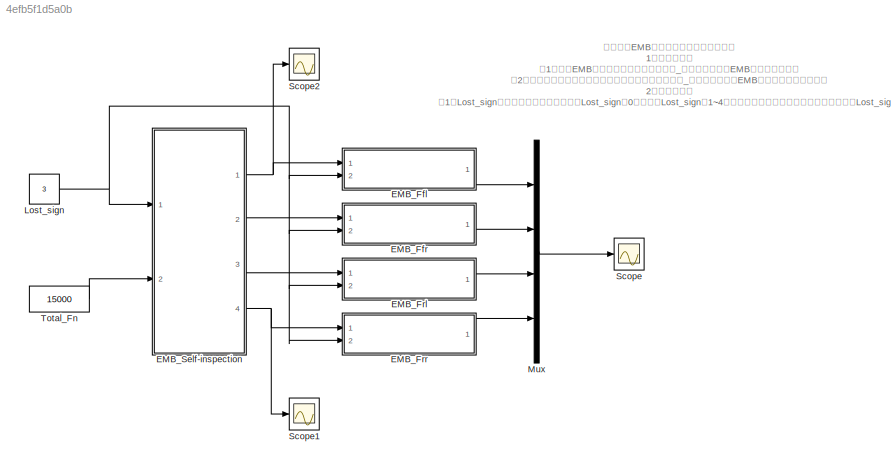
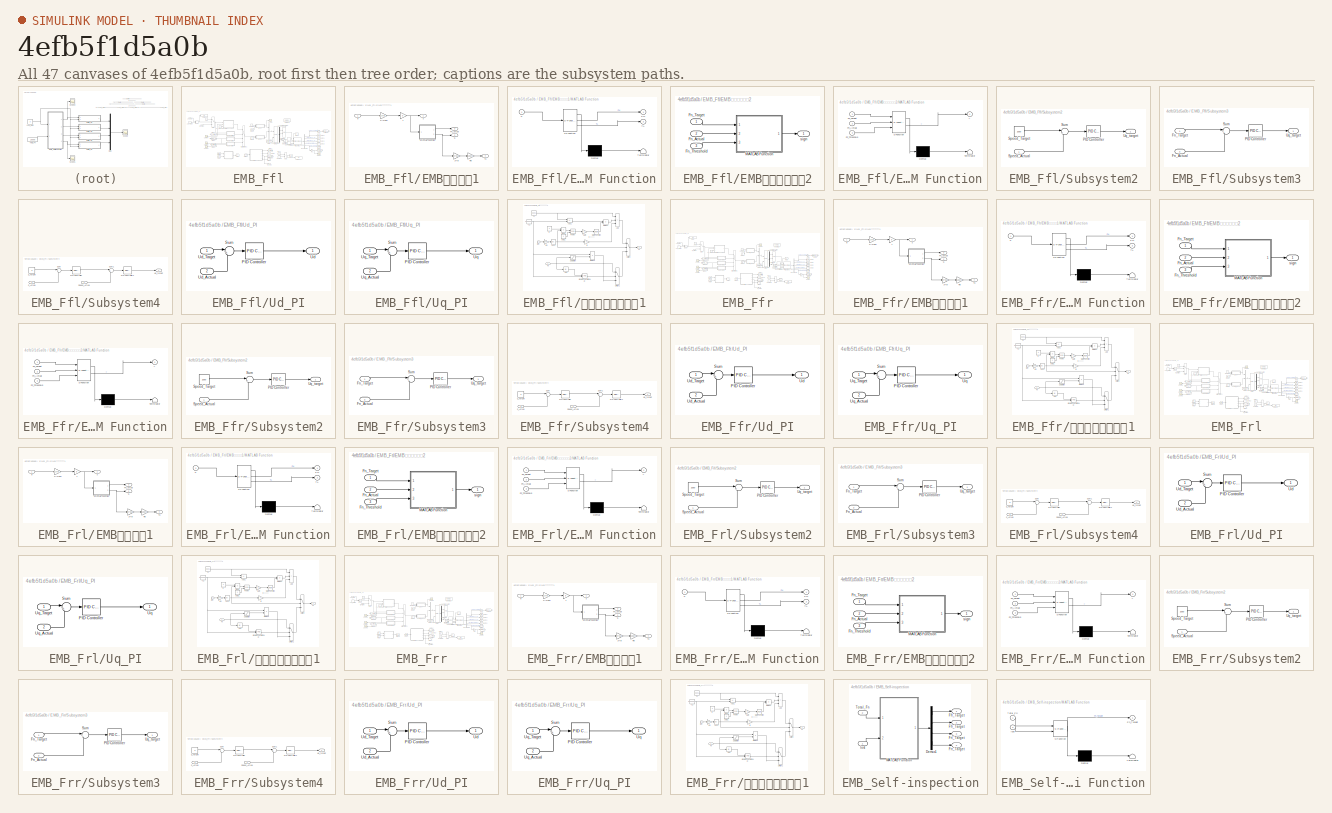
[diagram: thumbnail index - all 47 canvases of the model, root first then tree order]
MODEL slx_4efb5f1d5a0b
KIND model
CONFIG AbsTol = auto
CONFIG EnableMultiTasking = off
CONFIG FixedStep = auto
CONFIG MaxStep = auto
CONFIG MinStep = auto
CONFIG RelTol = 1e-3
CONFIG SampleTimeConstraint = Unconstrained
CONFIG SolverName = VariableStepAuto
CONFIG StartTime = 0.0
CONFIG StopTime = 2
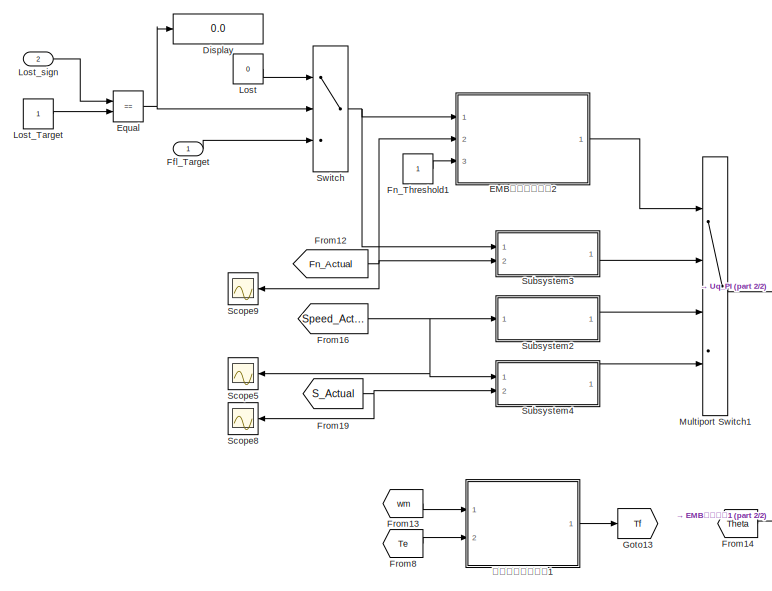
[diagram: EMB_Ffl - part 1/2, left side, full height]
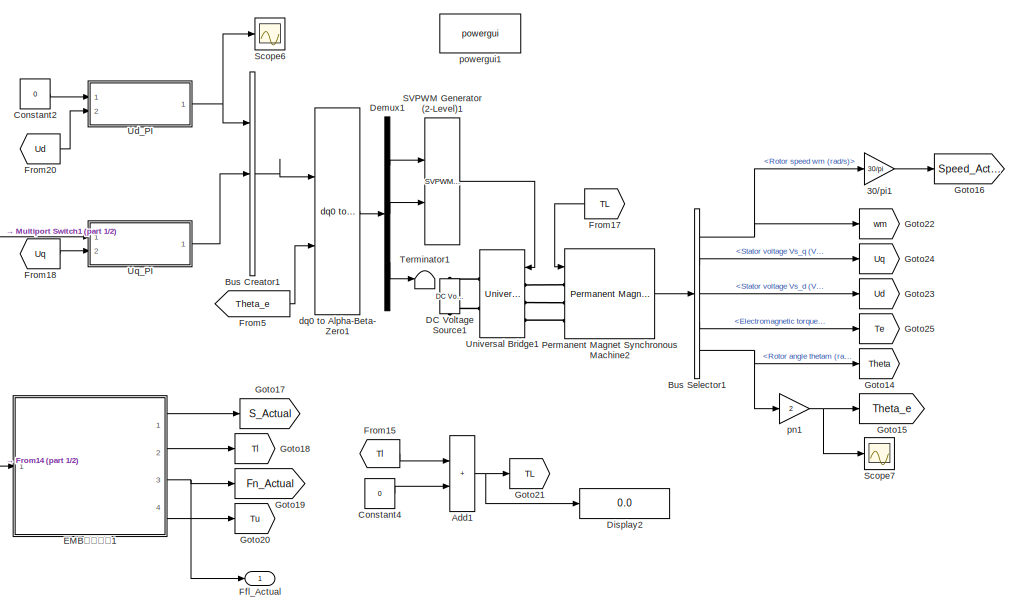
[diagram: EMB_Ffl - part 2/2, right side, full height]
BLOCK [SubSystem] EMB_Ffl
  Ports = [2, 1]
  RequestExecContextInheritance = off
BLOCK [Gain] EMB_Ffl/30//pi1
  Gain = 30/pi
BLOCK [Sum] EMB_Ffl/Add1
  IconShape = rectangular
  Ports = [2, 1]
BLOCK [BusCreator] EMB_Ffl/Bus Creator1
  DisplayOption = bar
  InheritFromInputs = on
  Inputs = 3
  Ports = [3, 1]
BLOCK [BusSelector] EMB_Ffl/Bus Selector1
  OutputSignals = Rotor speed wm (rad/s),Stator voltage Vs_q (V),Stator voltage Vs_d (V),Electromagnetic torque Te (N*m),Rotor angle thetam (rad)
  Ports = [1, 5]
BLOCK [Constant] EMB_Ffl/Constant2
  Value = 0
BLOCK [Constant] EMB_Ffl/Constant4
  Value = 0
BLOCK [Reference] EMB_Ffl/DC Voltage Source1  REF=spsDCVoltageSourceLib/DC Voltage Source
  Ports = [0, 0, 0, 0, 0, 1, 1]
  SourceBlock = spsDCVoltageSourceLib/DC Voltage Source
  SourceProductBaseCode = PS
  SourceType = DC Voltage Source
BLOCK [Demux] EMB_Ffl/Demux1
  Outputs = 3
  Ports = [1, 3]
BLOCK [Display] EMB_Ffl/Display
  Decimation = 1
  Ports = [1]
BLOCK [Display] EMB_Ffl/Display2
  Decimation = 1
  Ports = [1]
BLOCK [SubSystem] EMB_Ffl/EMB执行机构1
  Ports = [1, 4]
  RequestExecContextInheritance = off
BLOCK [Gain] EMB_Ffl/EMB执行机构1/1////2*pi*i
  Gain = 1/(2*pi*16)
BLOCK [Gain] EMB_Ffl/EMB执行机构1/2*fb
  Gain = 2*0.32
BLOCK [Outport] EMB_Ffl/EMB执行机构1/Fn_Actual
  Port = 3
BLOCK [Gain] EMB_Ffl/EMB执行机构1/L
  Gain = 5
BLOCK [SubSystem] EMB_Ffl/EMB执行机构1/MATLAB Function
  ErrorFcn = Stateflow.Translate.translate
  PermitHierarchicalResolution = ExplicitOnly
  Ports = [1, 2]
  RequestExecContextInheritance = off
  SFBlockType = MATLAB Function
  TreatAsAtomicUnit = on
BLOCK [Demux] EMB_Ffl/EMB执行机构1/MATLAB Function/ Demux 
  Outputs = 1
  Ports = [1, 1]
BLOCK [S-Function] EMB_Ffl/EMB执行机构1/MATLAB Function/ SFunction 
  EnableBusSupport = on
  FunctionName = sf_sfun
  PortCounts = [1 3]
  Ports = [1, 3]
  SFcnIsStateOwnerBlock = off
  SFunctionDeploymentMode = off
  Tag = Stateflow S-Function 2
BLOCK [Terminator] EMB_Ffl/EMB执行机构1/MATLAB Function/ Terminator 
BLOCK [Outport] EMB_Ffl/EMB执行机构1/MATLAB Function/FN
BLOCK [Outport] EMB_Ffl/EMB执行机构1/MATLAB Function/TL
  Port = 2
BLOCK [Inport] EMB_Ffl/EMB执行机构1/MATLAB Function/u
BLOCK [Gain] EMB_Ffl/EMB执行机构1/Rb
  Gain = 108.72
BLOCK [Outport] EMB_Ffl/EMB执行机构1/Tl
  Port = 2
BLOCK [Outport] EMB_Ffl/EMB执行机构1/Tu
  Port = 4
BLOCK [Outport] EMB_Ffl/EMB执行机构1/s
BLOCK [Inport] EMB_Ffl/EMB执行机构1/θ
BLOCK [SubSystem] EMB_Ffl/EMB执行策略判断2
  Ports = [3, 1]
  RequestExecContextInheritance = off
BLOCK [Inport] EMB_Ffl/EMB执行策略判断2/Fn_Actual
  Port = 2
BLOCK [Inport] EMB_Ffl/EMB执行策略判断2/Fn_Target
BLOCK [Inport] EMB_Ffl/EMB执行策略判断2/Fn_Threshold
  Port = 3
BLOCK [SubSystem] EMB_Ffl/EMB执行策略判断2/MATLAB Function
  ErrorFcn = Stateflow.Translate.translate
  PermitHierarchicalResolution = ExplicitOnly
  Ports = [3, 1]
  RequestExecContextInheritance = off
  SFBlockType = MATLAB Function
  TreatAsAtomicUnit = on
BLOCK [Demux] EMB_Ffl/EMB执行策略判断2/MATLAB Function/ Demux 
  Outputs = 1
  Ports = [1, 1]
BLOCK [S-Function] EMB_Ffl/EMB执行策略判断2/MATLAB Function/ SFunction 
  EnableBusSupport = on
  FunctionName = sf_sfun
  PortCounts = [3 2]
  Ports = [3, 2]
  SFcnIsStateOwnerBlock = off
  SFunctionDeploymentMode = off
  Tag = Stateflow S-Function 4
BLOCK [Terminator] EMB_Ffl/EMB执行策略判断2/MATLAB Function/ Terminator 
BLOCK [Inport] EMB_Ffl/EMB执行策略判断2/MATLAB Function/Fn_Actual
  Port = 2
BLOCK [Inport] EMB_Ffl/EMB执行策略判断2/MATLAB Function/Fn_Target
BLOCK [Inport] EMB_Ffl/EMB执行策略判断2/MATLAB Function/Fn_Threshold
  Port = 3
BLOCK [Outport] EMB_Ffl/EMB执行策略判断2/MATLAB Function/y
BLOCK [Outport] EMB_Ffl/EMB执行策略判断2/sign
BLOCK [RelationalOperator] EMB_Ffl/Equal
  InputSameDT = off
  Operator = ==
  OutDataTypeStr = boolean
  Ports = [2, 1]
  RndMeth = Simplest
BLOCK [Outport] EMB_Ffl/Ffl_Actual
BLOCK [Inport] EMB_Ffl/Ffl_Target
BLOCK [Constant] EMB_Ffl/Fn_Threshold1
BLOCK [From] EMB_Ffl/From12
  GotoTag = Fn_Actual
BLOCK [From] EMB_Ffl/From13
  GotoTag = wm
BLOCK [From] EMB_Ffl/From14
  GotoTag = Theta
BLOCK [From] EMB_Ffl/From15
  GotoTag = Tl
BLOCK [From] EMB_Ffl/From16
  GotoTag = Speed_Actual
BLOCK [From] EMB_Ffl/From17
  GotoTag = TL
BLOCK [From] EMB_Ffl/From18
  GotoTag = Uq
BLOCK [From] EMB_Ffl/From19
  GotoTag = S_Actual
BLOCK [From] EMB_Ffl/From20
  GotoTag = Ud
BLOCK [From] EMB_Ffl/From5
  GotoTag = Theta_e
BLOCK [From] EMB_Ffl/From8
  GotoTag = Te
BLOCK [Goto] EMB_Ffl/Goto13
  GotoTag = Tf
BLOCK [Goto] EMB_Ffl/Goto14
  GotoTag = Theta
BLOCK [Goto] EMB_Ffl/Goto15
  GotoTag = Theta_e
BLOCK [Goto] EMB_Ffl/Goto16
  GotoTag = Speed_Actual
BLOCK [Goto] EMB_Ffl/Goto17
  GotoTag = S_Actual
BLOCK [Goto] EMB_Ffl/Goto18
  GotoTag = Tl
BLOCK [Goto] EMB_Ffl/Goto19
  GotoTag = Fn_Actual
BLOCK [Goto] EMB_Ffl/Goto20
  GotoTag = Tu
BLOCK [Goto] EMB_Ffl/Goto21
  GotoTag = TL
BLOCK [Goto] EMB_Ffl/Goto22
  GotoTag = wm
BLOCK [Goto] EMB_Ffl/Goto23
  GotoTag = Ud
BLOCK [Goto] EMB_Ffl/Goto24
  GotoTag = Uq
BLOCK [Goto] EMB_Ffl/Goto25
  GotoTag = Te
BLOCK [Constant] EMB_Ffl/Lost
  Value = 0
BLOCK [Constant] EMB_Ffl/Lost_Target
BLOCK [Inport] EMB_Ffl/Lost_sign
  Port = 2
BLOCK [MultiPortSwitch] EMB_Ffl/Multiport Switch1
  DiagnosticForDefault = None
  InputSameDT = off
  Ports = [4, 1]
  SaturateOnIntegerOverflow = off
BLOCK [Reference] EMB_Ffl/Permanent Magnet Synchronous Machine2  REF=spsPermanentMagnetSynchronousMachineLib/Permanent Magnet
Synchronous Machine
  Ports = [1, 1, 0, 0, 0, 3]
  SourceBlock = spsPermanentMagnetSynchronousMachineLib/Permanent Magnet\nSynchronous Machine
  SourceProductBaseCode = PS
  SourceType = Permanent Magnet Synchronous Machine
BLOCK [Reference] EMB_Ffl/SVPWM Generator (2-Level)1  REF=spsSVPWMGenerator2LevelLib/SVPWM Generator
(2-Level)
  Ports = [2, 1]
  SourceBlock = spsSVPWMGenerator2LevelLib/SVPWM Generator\n(2-Level)
  SourceProductBaseCode = PS
  SourceType = SVPWM Generator (2-Level)
BLOCK [Scope] EMB_Ffl/Scope5
  Floating = off
  NumInputPorts = 1
  Ports = [1]
  ScopeSpecificationString = Simulink.scopes.TimeScopeBlockCfg('CurrentConfiguration', extmgr.ConfigurationSet(extmgr.Configuration('Core','General UI',true),extmgr.Configuration('Core','Source UI',true),extmgr.Configuration('Sources','WiredSimulink',true,'DataLoggingVariableName','ScopeData1'),extmgr.Configuration('Visuals','Time Domain',true,'SerializedDisplays',{struct('MinYLimReal','-974.6794','MaxYLimReal','951.25128','Y...<+1417ch>  <repeated x4 — deduplicated; at blocks: Scope5>
BLOCK [Scope] EMB_Ffl/Scope6
  Floating = off
  NumInputPorts = 1
  Ports = [1]
  ScopeSpecificationString = Simulink.scopes.TimeScopeBlockCfg('CurrentConfiguration', extmgr.ConfigurationSet(extmgr.Configuration('Core','General UI',true),extmgr.Configuration('Core','Source UI',true),extmgr.Configuration('Sources','WiredSimulink',true,'DataLoggingVariableName','ScopeData2'),extmgr.Configuration('Visuals','Time Domain',true,'SerializedDisplays',{struct('MinYLimReal','-7.57677','MaxYLimReal','142.00318','YL...<+1449ch>  <repeated x4 — deduplicated; at blocks: Scope6>
BLOCK [Scope] EMB_Ffl/Scope7
  Floating = off
  NumInputPorts = 1
  Ports = [1]
  ScopeSpecificationString = Simulink.scopes.TimeScopeBlockCfg('CurrentConfiguration', extmgr.ConfigurationSet(extmgr.Configuration('Core','General UI',true),extmgr.Configuration('Core','Source UI',true),extmgr.Configuration('Sources','WiredSimulink',true,'DataLoggingVariableName','ScopeData3'),extmgr.Configuration('Visuals','Time Domain',true,'SerializedDisplays',{struct('MinYLimReal','-3.63759','MaxYLimReal','32.73829','YLa...<+1398ch>  <repeated x4 — deduplicated; at blocks: Scope7>
BLOCK [Scope] EMB_Ffl/Scope8
  Floating = off
  NumInputPorts = 1
  Ports = [1]
  ScopeSpecificationString = Simulink.scopes.TimeScopeBlockCfg('CurrentConfiguration', extmgr.ConfigurationSet(extmgr.Configuration('Core','General UI',true),extmgr.Configuration('Core','Source UI',true),extmgr.Configuration('Sources','WiredSimulink',true,'DataLoggingVariableName','ScopeData4'),extmgr.Configuration('Visuals','Time Domain',true,'SerializedDisplays',{struct('MinYLimReal','-0.09046','MaxYLimReal','0.81416','YLab...<+1420ch>  <repeated x4 — deduplicated; at blocks: Scope8>
BLOCK [Scope] EMB_Ffl/Scope9
  Floating = off
  NumInputPorts = 1
  Ports = [1]
  ScopeSpecificationString = Simulink.scopes.TimeScopeBlockCfg('CurrentConfiguration', extmgr.ConfigurationSet(extmgr.Configuration('Core','General UI',true),extmgr.Configuration('Core','Source UI',true),extmgr.Configuration('Sources','WiredSimulink',true),extmgr.Configuration('Visuals','Time Domain',true,'SerializedDisplays',{struct('MinYLimReal','-628.21461','MaxYLimReal','2310.83977','YLabelReal','','MinYLimMag',' 0.00000'...<+1397ch>  <repeated x4 — deduplicated; at blocks: Scope9>
BLOCK [SubSystem] EMB_Ffl/Subsystem2
  Ports = [1, 1]
  RequestExecContextInheritance = off
BLOCK [Reference] EMB_Ffl/Subsystem2/PID Controller  REF=slpidlib/PID Controller
  Ports = [1, 1]
  SourceBlock = slpidlib/PID Controller
  SourceProductBaseCode = SL
  SourceType = PID 1dof
BLOCK [Inport] EMB_Ffl/Subsystem2/Speed_Actual
BLOCK [Constant] EMB_Ffl/Subsystem2/Speed_Target
  Value = 1000
BLOCK [Sum] EMB_Ffl/Subsystem2/Sum
  Inputs = |+-
  Ports = [2, 1]
BLOCK [Outport] EMB_Ffl/Subsystem2/Uq_target
BLOCK [SubSystem] EMB_Ffl/Subsystem3
  Ports = [2, 1]
  RequestExecContextInheritance = off
BLOCK [Inport] EMB_Ffl/Subsystem3/Fn_Actual
  Port = 2
BLOCK [Inport] EMB_Ffl/Subsystem3/Fn_Target
BLOCK [Reference] EMB_Ffl/Subsystem3/PID Controller  REF=slpidlib/PID Controller
  Ports = [1, 1]
  SourceBlock = slpidlib/PID Controller
  SourceProductBaseCode = SL
  SourceType = PID 1dof
BLOCK [Sum] EMB_Ffl/Subsystem3/Sum
  Inputs = |+-
  Ports = [2, 1]
BLOCK [Outport] EMB_Ffl/Subsystem3/Uq_target
BLOCK [SubSystem] EMB_Ffl/Subsystem4
  Ports = [2, 1]
  RequestExecContextInheritance = off
BLOCK [Reference] EMB_Ffl/Subsystem4/PID Controller  REF=slpidlib/PID Controller
  Ports = [1, 1]
  SourceBlock = slpidlib/PID Controller
  SourceProductBaseCode = SL
  SourceType = PID 1dof
BLOCK [Reference] EMB_Ffl/Subsystem4/PID Controller1  REF=slpidlib/PID Controller
  Ports = [1, 1]
  SourceBlock = slpidlib/PID Controller
  SourceProductBaseCode = SL
  SourceType = PID 1dof
BLOCK [Inport] EMB_Ffl/Subsystem4/S_Actual
  Port = 2
BLOCK [Constant] EMB_Ffl/Subsystem4/S_Target
  Value = 0
BLOCK [Inport] EMB_Ffl/Subsystem4/Speed_Actual
BLOCK [Sum] EMB_Ffl/Subsystem4/Sum
  Inputs = |+-
  Ports = [2, 1]
BLOCK [Sum] EMB_Ffl/Subsystem4/Sum1
  Inputs = |+-
  Ports = [2, 1]
BLOCK [Outport] EMB_Ffl/Subsystem4/Uq_target
BLOCK [Switch] EMB_Ffl/Switch
  InputSameDT = off
  SaturateOnIntegerOverflow = off
  Threshold = 1
BLOCK [Terminator] EMB_Ffl/Terminator1
BLOCK [SubSystem] EMB_Ffl/Ud_PI
  Ports = [2, 1]
  RequestExecContextInheritance = off
BLOCK [Reference] EMB_Ffl/Ud_PI/PID Controller  REF=slpidlib/PID Controller
  Ports = [1, 1]
  SourceBlock = slpidlib/PID Controller
  SourceProductBaseCode = SL
  SourceType = PID 1dof
BLOCK [Sum] EMB_Ffl/Ud_PI/Sum
  Inputs = |+-
  Ports = [2, 1]
BLOCK [Outport] EMB_Ffl/Ud_PI/Ud
BLOCK [Inport] EMB_Ffl/Ud_PI/Ud_Actual
  Port = 2
BLOCK [Inport] EMB_Ffl/Ud_PI/Ud_Target
BLOCK [Reference] EMB_Ffl/Universal Bridge1  REF=spsUniversalBridgeLib/Universal Bridge
  Ports = [1, 0, 0, 0, 0, 3, 2]
  SourceBlock = spsUniversalBridgeLib/Universal Bridge
  SourceProductBaseCode = PS
  SourceType = Universal Bridge
BLOCK [SubSystem] EMB_Ffl/Uq_PI
  Ports = [2, 1]
  RequestExecContextInheritance = off
BLOCK [Reference] EMB_Ffl/Uq_PI/PID Controller  REF=slpidlib/PID Controller
  Ports = [1, 1]
  SourceBlock = slpidlib/PID Controller
  SourceProductBaseCode = SL
  SourceType = PID 1dof
BLOCK [Sum] EMB_Ffl/Uq_PI/Sum
  Inputs = |+-
  Ports = [2, 1]
BLOCK [Outport] EMB_Ffl/Uq_PI/Uq
BLOCK [Inport] EMB_Ffl/Uq_PI/Uq_Actual
  Port = 2
BLOCK [Inport] EMB_Ffl/Uq_PI/Uq_Target
BLOCK [Reference] EMB_Ffl/dq0 to Alpha-Beta-Zero1  REF=spsdq0toAlphaBetaZeroLib/dq0 to
Alpha-Beta-Zero
  Ports = [2, 1]
  SourceBlock = spsdq0toAlphaBetaZeroLib/dq0 to\nAlpha-Beta-Zero
  SourceProductBaseCode = PS
  SourceType = dq0 to Alpha-Beta-Zero Transformation
BLOCK [Gain] EMB_Ffl/pn1
  Gain = 2
BLOCK [Reference] EMB_Ffl/powergui1  REF=spspowerguiLib/powergui
  Ports = []
  Priority = 1
  SourceBlock = spspowerguiLib/powergui
  SourceProductBaseCode = PS
  SourceType = PSB option menu block
BLOCK [SubSystem] EMB_Ffl/驱动电机摩擦模型1
  Ports = [2, 1]
  RequestExecContextInheritance = off
BLOCK [Abs] EMB_Ffl/驱动电机摩擦模型1/Abs
  SaturateOnIntegerOverflow = off
BLOCK [Abs] EMB_Ffl/驱动电机摩擦模型1/Abs1
  SaturateOnIntegerOverflow = off
BLOCK [Sum] EMB_Ffl/驱动电机摩擦模型1/Add
  IconShape = rectangular
  Inputs = +++
  Ports = [3, 1]
BLOCK [Sum] EMB_Ffl/驱动电机摩擦模型1/Add1
  IconShape = rectangular
  Inputs = -+
  Ports = [2, 1]
BLOCK [Gain] EMB_Ffl/驱动电机摩擦模型1/B
  Gain = 0
BLOCK [Product] EMB_Ffl/驱动电机摩擦模型1/Divide
  Inputs = /*
  Ports = [2, 1]
BLOCK [Product] EMB_Ffl/驱动电机摩擦模型1/Divide1
  Inputs = **
  Ports = [2, 1]
BLOCK [Product] EMB_Ffl/驱动电机摩擦模型1/Divide2
  Inputs = **
  Ports = [2, 1]
BLOCK [Gain] EMB_Ffl/驱动电机摩擦模型1/Gain
  Gain = -1
BLOCK [RelationalOperator] EMB_Ffl/驱动电机摩擦模型1/GreaterThanOrEqual
  InputSameDT = off
  OutDataTypeStr = boolean
  Ports = [2, 1]
  RndMeth = Simplest
BLOCK [Math] EMB_Ffl/驱动电机摩擦模型1/Math Function
  Ports = [1, 1]
BLOCK [Math] EMB_Ffl/驱动电机摩擦模型1/Power
  Operator = pow
  Ports = [2, 1]
BLOCK [Gain] EMB_Ffl/驱动电机摩擦模型1/Rd
  Gain = 0.045
BLOCK [Saturate] EMB_Ffl/驱动电机摩擦模型1/Saturation
  LowerLimit = -1
  UpperLimit = 1
BLOCK [Switch] EMB_Ffl/驱动电机摩擦模型1/Switch
  Criteria = u2 ~= 0
  InputSameDT = off
  SaturateOnIntegerOverflow = off
BLOCK [Switch] EMB_Ffl/驱动电机摩擦模型1/Switch1
  InputSameDT = off
  SaturateOnIntegerOverflow = off
  Threshold = 1
BLOCK [Constant] EMB_Ffl/驱动电机摩擦模型1/Tc
  Value = 0.001
BLOCK [Inport] EMB_Ffl/驱动电机摩擦模型1/Te
  Port = 2
BLOCK [Outport] EMB_Ffl/驱动电机摩擦模型1/Tf
BLOCK [Constant] EMB_Ffl/驱动电机摩擦模型1/Ts
  Value = 0.0000001
BLOCK [Constant] EMB_Ffl/驱动电机摩擦模型1/deta1
BLOCK [Constant] EMB_Ffl/驱动电机摩擦模型1/w
BLOCK [Inport] EMB_Ffl/驱动电机摩擦模型1/wm
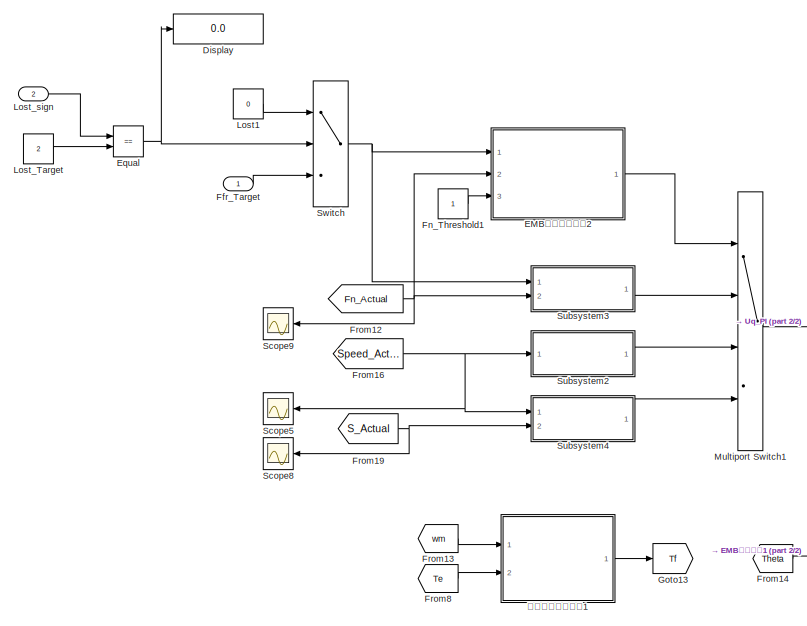
[diagram: EMB_Ffr - part 1/2, left side, full height]
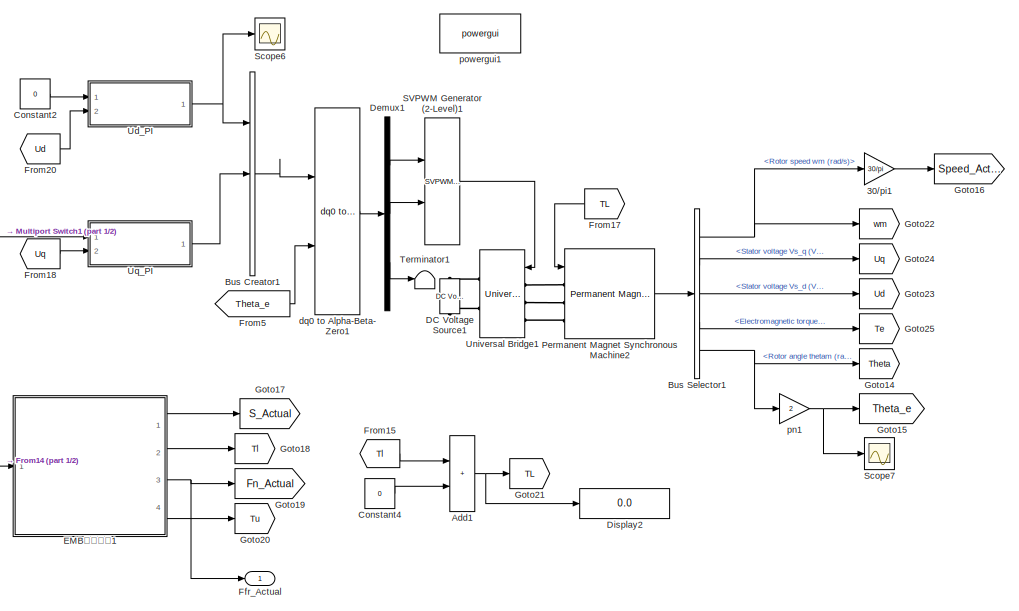
[diagram: EMB_Ffr - part 2/2, right side, full height]
BLOCK [SubSystem] EMB_Ffr
  Ports = [2, 1]
  RequestExecContextInheritance = off
BLOCK [Gain] EMB_Ffr/30//pi1
  Gain = 30/pi
BLOCK [Sum] EMB_Ffr/Add1
  IconShape = rectangular
  Ports = [2, 1]
BLOCK [BusCreator] EMB_Ffr/Bus Creator1
  DisplayOption = bar
  InheritFromInputs = on
  Inputs = 3
  Ports = [3, 1]
BLOCK [BusSelector] EMB_Ffr/Bus Selector1
  OutputSignals = Rotor speed wm (rad/s),Stator voltage Vs_q (V),Stator voltage Vs_d (V),Electromagnetic torque Te (N*m),Rotor angle thetam (rad)
  Ports = [1, 5]
BLOCK [Constant] EMB_Ffr/Constant2
  Value = 0
BLOCK [Constant] EMB_Ffr/Constant4
  Value = 0
BLOCK [Reference] EMB_Ffr/DC Voltage Source1  REF=spsDCVoltageSourceLib/DC Voltage Source
  Ports = [0, 0, 0, 0, 0, 1, 1]
  SourceBlock = spsDCVoltageSourceLib/DC Voltage Source
  SourceProductBaseCode = PS
  SourceType = DC Voltage Source
BLOCK [Demux] EMB_Ffr/Demux1
  Outputs = 3
  Ports = [1, 3]
BLOCK [Display] EMB_Ffr/Display
  Decimation = 1
  Ports = [1]
BLOCK [Display] EMB_Ffr/Display2
  Decimation = 1
  Ports = [1]
BLOCK [SubSystem] EMB_Ffr/EMB执行机构1
  Ports = [1, 4]
  RequestExecContextInheritance = off
BLOCK [Gain] EMB_Ffr/EMB执行机构1/1////2*pi*i
  Gain = 1/(2*pi*16)
BLOCK [Gain] EMB_Ffr/EMB执行机构1/2*fb
  Gain = 2*0.32
BLOCK [Outport] EMB_Ffr/EMB执行机构1/Fn_Actual
  Port = 3
BLOCK [Gain] EMB_Ffr/EMB执行机构1/L
  Gain = 5
BLOCK [SubSystem] EMB_Ffr/EMB执行机构1/MATLAB Function
  ErrorFcn = Stateflow.Translate.translate
  PermitHierarchicalResolution = ExplicitOnly
  Ports = [1, 2]
  RequestExecContextInheritance = off
  SFBlockType = MATLAB Function
  TreatAsAtomicUnit = on
BLOCK [Demux] EMB_Ffr/EMB执行机构1/MATLAB Function/ Demux 
  Outputs = 1
  Ports = [1, 1]
BLOCK [S-Function] EMB_Ffr/EMB执行机构1/MATLAB Function/ SFunction 
  EnableBusSupport = on
  FunctionName = sf_sfun
  PortCounts = [1 3]
  Ports = [1, 3]
  SFcnIsStateOwnerBlock = off
  SFunctionDeploymentMode = off
  Tag = Stateflow S-Function 1
BLOCK [Terminator] EMB_Ffr/EMB执行机构1/MATLAB Function/ Terminator 
BLOCK [Outport] EMB_Ffr/EMB执行机构1/MATLAB Function/FN
BLOCK [Outport] EMB_Ffr/EMB执行机构1/MATLAB Function/TL
  Port = 2
BLOCK [Inport] EMB_Ffr/EMB执行机构1/MATLAB Function/u
BLOCK [Gain] EMB_Ffr/EMB执行机构1/Rb
  Gain = 108.72
BLOCK [Outport] EMB_Ffr/EMB执行机构1/Tl
  Port = 2
BLOCK [Outport] EMB_Ffr/EMB执行机构1/Tu
  Port = 4
BLOCK [Outport] EMB_Ffr/EMB执行机构1/s
BLOCK [Inport] EMB_Ffr/EMB执行机构1/θ
BLOCK [SubSystem] EMB_Ffr/EMB执行策略判断2
  Ports = [3, 1]
  RequestExecContextInheritance = off
BLOCK [Inport] EMB_Ffr/EMB执行策略判断2/Fn_Actual
  Port = 2
BLOCK [Inport] EMB_Ffr/EMB执行策略判断2/Fn_Target
BLOCK [Inport] EMB_Ffr/EMB执行策略判断2/Fn_Threshold
  Port = 3
BLOCK [SubSystem] EMB_Ffr/EMB执行策略判断2/MATLAB Function
  ErrorFcn = Stateflow.Translate.translate
  PermitHierarchicalResolution = ExplicitOnly
  Ports = [3, 1]
  RequestExecContextInheritance = off
  SFBlockType = MATLAB Function
  TreatAsAtomicUnit = on
BLOCK [Demux] EMB_Ffr/EMB执行策略判断2/MATLAB Function/ Demux 
  Outputs = 1
  Ports = [1, 1]
BLOCK [S-Function] EMB_Ffr/EMB执行策略判断2/MATLAB Function/ SFunction 
  EnableBusSupport = on
  FunctionName = sf_sfun
  PortCounts = [3 2]
  Ports = [3, 2]
  SFcnIsStateOwnerBlock = off
  SFunctionDeploymentMode = off
  Tag = Stateflow S-Function 3
BLOCK [Terminator] EMB_Ffr/EMB执行策略判断2/MATLAB Function/ Terminator 
BLOCK [Inport] EMB_Ffr/EMB执行策略判断2/MATLAB Function/Fn_Actual
  Port = 2
BLOCK [Inport] EMB_Ffr/EMB执行策略判断2/MATLAB Function/Fn_Target
BLOCK [Inport] EMB_Ffr/EMB执行策略判断2/MATLAB Function/Fn_Threshold
  Port = 3
BLOCK [Outport] EMB_Ffr/EMB执行策略判断2/MATLAB Function/y
BLOCK [Outport] EMB_Ffr/EMB执行策略判断2/sign
BLOCK [RelationalOperator] EMB_Ffr/Equal
  InputSameDT = off
  Operator = ==
  OutDataTypeStr = boolean
  Ports = [2, 1]
  RndMeth = Simplest
BLOCK [Outport] EMB_Ffr/Ffr_Actual
BLOCK [Inport] EMB_Ffr/Ffr_Target
BLOCK [Constant] EMB_Ffr/Fn_Threshold1
BLOCK [From] EMB_Ffr/From12
  GotoTag = Fn_Actual
BLOCK [From] EMB_Ffr/From13
  GotoTag = wm
BLOCK [From] EMB_Ffr/From14
  GotoTag = Theta
BLOCK [From] EMB_Ffr/From15
  GotoTag = Tl
BLOCK [From] EMB_Ffr/From16
  GotoTag = Speed_Actual
BLOCK [From] EMB_Ffr/From17
  GotoTag = TL
BLOCK [From] EMB_Ffr/From18
  GotoTag = Uq
BLOCK [From] EMB_Ffr/From19
  GotoTag = S_Actual
BLOCK [From] EMB_Ffr/From20
  GotoTag = Ud
BLOCK [From] EMB_Ffr/From5
  GotoTag = Theta_e
BLOCK [From] EMB_Ffr/From8
  GotoTag = Te
BLOCK [Goto] EMB_Ffr/Goto13
  GotoTag = Tf
BLOCK [Goto] EMB_Ffr/Goto14
  GotoTag = Theta
BLOCK [Goto] EMB_Ffr/Goto15
  GotoTag = Theta_e
BLOCK [Goto] EMB_Ffr/Goto16
  GotoTag = Speed_Actual
BLOCK [Goto] EMB_Ffr/Goto17
  GotoTag = S_Actual
BLOCK [Goto] EMB_Ffr/Goto18
  GotoTag = Tl
BLOCK [Goto] EMB_Ffr/Goto19
  GotoTag = Fn_Actual
BLOCK [Goto] EMB_Ffr/Goto20
  GotoTag = Tu
BLOCK [Goto] EMB_Ffr/Goto21
  GotoTag = TL
BLOCK [Goto] EMB_Ffr/Goto22
  GotoTag = wm
BLOCK [Goto] EMB_Ffr/Goto23
  GotoTag = Ud
BLOCK [Goto] EMB_Ffr/Goto24
  GotoTag = Uq
BLOCK [Goto] EMB_Ffr/Goto25
  GotoTag = Te
BLOCK [Constant] EMB_Ffr/Lost1
  Value = 0
BLOCK [Constant] EMB_Ffr/Lost_Target
  Value = 2
BLOCK [Inport] EMB_Ffr/Lost_sign
  Port = 2
BLOCK [MultiPortSwitch] EMB_Ffr/Multiport Switch1
  DiagnosticForDefault = None
  InputSameDT = off
  Ports = [4, 1]
  SaturateOnIntegerOverflow = off
BLOCK [Reference] EMB_Ffr/Permanent Magnet Synchronous Machine2  REF=spsPermanentMagnetSynchronousMachineLib/Permanent Magnet
Synchronous Machine
  Ports = [1, 1, 0, 0, 0, 3]
  SourceBlock = spsPermanentMagnetSynchronousMachineLib/Permanent Magnet\nSynchronous Machine
  SourceProductBaseCode = PS
  SourceType = Permanent Magnet Synchronous Machine
BLOCK [Reference] EMB_Ffr/SVPWM Generator (2-Level)1  REF=spsSVPWMGenerator2LevelLib/SVPWM Generator
(2-Level)
  Ports = [2, 1]
  SourceBlock = spsSVPWMGenerator2LevelLib/SVPWM Generator\n(2-Level)
  SourceProductBaseCode = PS
  SourceType = SVPWM Generator (2-Level)
BLOCK [Scope] EMB_Ffr/Scope5
  Floating = off
  NumInputPorts = 1
  Ports = [1]
BLOCK [Scope] EMB_Ffr/Scope6
  Floating = off
  NumInputPorts = 1
  Ports = [1]
BLOCK [Scope] EMB_Ffr/Scope7
  Floating = off
  NumInputPorts = 1
  Ports = [1]
BLOCK [Scope] EMB_Ffr/Scope8
  Floating = off
  NumInputPorts = 1
  Ports = [1]
BLOCK [Scope] EMB_Ffr/Scope9
  Floating = off
  NumInputPorts = 1
  Ports = [1]
BLOCK [SubSystem] EMB_Ffr/Subsystem2
  Ports = [1, 1]
  RequestExecContextInheritance = off
BLOCK [Reference] EMB_Ffr/Subsystem2/PID Controller  REF=slpidlib/PID Controller
  Ports = [1, 1]
  SourceBlock = slpidlib/PID Controller
  SourceProductBaseCode = SL
  SourceType = PID 1dof
BLOCK [Inport] EMB_Ffr/Subsystem2/Speed_Actual
BLOCK [Constant] EMB_Ffr/Subsystem2/Speed_Target
  Value = 1000
BLOCK [Sum] EMB_Ffr/Subsystem2/Sum
  Inputs = |+-
  Ports = [2, 1]
BLOCK [Outport] EMB_Ffr/Subsystem2/Uq_target
BLOCK [SubSystem] EMB_Ffr/Subsystem3
  Ports = [2, 1]
  RequestExecContextInheritance = off
BLOCK [Inport] EMB_Ffr/Subsystem3/Fn_Actual
  Port = 2
BLOCK [Inport] EMB_Ffr/Subsystem3/Fn_Target
BLOCK [Reference] EMB_Ffr/Subsystem3/PID Controller  REF=slpidlib/PID Controller
  Ports = [1, 1]
  SourceBlock = slpidlib/PID Controller
  SourceProductBaseCode = SL
  SourceType = PID 1dof
BLOCK [Sum] EMB_Ffr/Subsystem3/Sum
  Inputs = |+-
  Ports = [2, 1]
BLOCK [Outport] EMB_Ffr/Subsystem3/Uq_target
BLOCK [SubSystem] EMB_Ffr/Subsystem4
  Ports = [2, 1]
  RequestExecContextInheritance = off
BLOCK [Reference] EMB_Ffr/Subsystem4/PID Controller  REF=slpidlib/PID Controller
  Ports = [1, 1]
  SourceBlock = slpidlib/PID Controller
  SourceProductBaseCode = SL
  SourceType = PID 1dof
BLOCK [Reference] EMB_Ffr/Subsystem4/PID Controller1  REF=slpidlib/PID Controller
  Ports = [1, 1]
  SourceBlock = slpidlib/PID Controller
  SourceProductBaseCode = SL
  SourceType = PID 1dof
BLOCK [Inport] EMB_Ffr/Subsystem4/S_Actual
  Port = 2
BLOCK [Constant] EMB_Ffr/Subsystem4/S_Target
  Value = 0
BLOCK [Inport] EMB_Ffr/Subsystem4/Speed_Actual
BLOCK [Sum] EMB_Ffr/Subsystem4/Sum
  Inputs = |+-
  Ports = [2, 1]
BLOCK [Sum] EMB_Ffr/Subsystem4/Sum1
  Inputs = |+-
  Ports = [2, 1]
BLOCK [Outport] EMB_Ffr/Subsystem4/Uq_target
BLOCK [Switch] EMB_Ffr/Switch
  InputSameDT = off
  SaturateOnIntegerOverflow = off
  Threshold = 1
BLOCK [Terminator] EMB_Ffr/Terminator1
BLOCK [SubSystem] EMB_Ffr/Ud_PI
  Ports = [2, 1]
  RequestExecContextInheritance = off
BLOCK [Reference] EMB_Ffr/Ud_PI/PID Controller  REF=slpidlib/PID Controller
  Ports = [1, 1]
  SourceBlock = slpidlib/PID Controller
  SourceProductBaseCode = SL
  SourceType = PID 1dof
BLOCK [Sum] EMB_Ffr/Ud_PI/Sum
  Inputs = |+-
  Ports = [2, 1]
BLOCK [Outport] EMB_Ffr/Ud_PI/Ud
BLOCK [Inport] EMB_Ffr/Ud_PI/Ud_Actual
  Port = 2
BLOCK [Inport] EMB_Ffr/Ud_PI/Ud_Target
BLOCK [Reference] EMB_Ffr/Universal Bridge1  REF=spsUniversalBridgeLib/Universal Bridge
  Ports = [1, 0, 0, 0, 0, 3, 2]
  SourceBlock = spsUniversalBridgeLib/Universal Bridge
  SourceProductBaseCode = PS
  SourceType = Universal Bridge
BLOCK [SubSystem] EMB_Ffr/Uq_PI
  Ports = [2, 1]
  RequestExecContextInheritance = off
BLOCK [Reference] EMB_Ffr/Uq_PI/PID Controller  REF=slpidlib/PID Controller
  Ports = [1, 1]
  SourceBlock = slpidlib/PID Controller
  SourceProductBaseCode = SL
  SourceType = PID 1dof
BLOCK [Sum] EMB_Ffr/Uq_PI/Sum
  Inputs = |+-
  Ports = [2, 1]
BLOCK [Outport] EMB_Ffr/Uq_PI/Uq
BLOCK [Inport] EMB_Ffr/Uq_PI/Uq_Actual
  Port = 2
BLOCK [Inport] EMB_Ffr/Uq_PI/Uq_Target
BLOCK [Reference] EMB_Ffr/dq0 to Alpha-Beta-Zero1  REF=spsdq0toAlphaBetaZeroLib/dq0 to
Alpha-Beta-Zero
  Ports = [2, 1]
  SourceBlock = spsdq0toAlphaBetaZeroLib/dq0 to\nAlpha-Beta-Zero
  SourceProductBaseCode = PS
  SourceType = dq0 to Alpha-Beta-Zero Transformation
BLOCK [Gain] EMB_Ffr/pn1
  Gain = 2
BLOCK [Reference] EMB_Ffr/powergui1  REF=spspowerguiLib/powergui
  Ports = []
  Priority = 1
  SourceBlock = spspowerguiLib/powergui
  SourceProductBaseCode = PS
  SourceType = PSB option menu block
BLOCK [SubSystem] EMB_Ffr/驱动电机摩擦模型1
  Ports = [2, 1]
  RequestExecContextInheritance = off
BLOCK [Abs] EMB_Ffr/驱动电机摩擦模型1/Abs
  SaturateOnIntegerOverflow = off
BLOCK [Abs] EMB_Ffr/驱动电机摩擦模型1/Abs1
  SaturateOnIntegerOverflow = off
BLOCK [Sum] EMB_Ffr/驱动电机摩擦模型1/Add
  IconShape = rectangular
  Inputs = +++
  Ports = [3, 1]
BLOCK [Sum] EMB_Ffr/驱动电机摩擦模型1/Add1
  IconShape = rectangular
  Inputs = -+
  Ports = [2, 1]
BLOCK [Gain] EMB_Ffr/驱动电机摩擦模型1/B
  Gain = 0
BLOCK [Product] EMB_Ffr/驱动电机摩擦模型1/Divide
  Inputs = /*
  Ports = [2, 1]
BLOCK [Product] EMB_Ffr/驱动电机摩擦模型1/Divide1
  Inputs = **
  Ports = [2, 1]
BLOCK [Product] EMB_Ffr/驱动电机摩擦模型1/Divide2
  Inputs = **
  Ports = [2, 1]
BLOCK [Gain] EMB_Ffr/驱动电机摩擦模型1/Gain
  Gain = -1
BLOCK [RelationalOperator] EMB_Ffr/驱动电机摩擦模型1/GreaterThanOrEqual
  InputSameDT = off
  OutDataTypeStr = boolean
  Ports = [2, 1]
  RndMeth = Simplest
BLOCK [Math] EMB_Ffr/驱动电机摩擦模型1/Math Function
  Ports = [1, 1]
BLOCK [Math] EMB_Ffr/驱动电机摩擦模型1/Power
  Operator = pow
  Ports = [2, 1]
BLOCK [Gain] EMB_Ffr/驱动电机摩擦模型1/Rd
  Gain = 0.045
BLOCK [Saturate] EMB_Ffr/驱动电机摩擦模型1/Saturation
  LowerLimit = -1
  UpperLimit = 1
BLOCK [Switch] EMB_Ffr/驱动电机摩擦模型1/Switch
  Criteria = u2 ~= 0
  InputSameDT = off
  SaturateOnIntegerOverflow = off
BLOCK [Switch] EMB_Ffr/驱动电机摩擦模型1/Switch1
  InputSameDT = off
  SaturateOnIntegerOverflow = off
  Threshold = 1
BLOCK [Constant] EMB_Ffr/驱动电机摩擦模型1/Tc
  Value = 0.001
BLOCK [Inport] EMB_Ffr/驱动电机摩擦模型1/Te
  Port = 2
BLOCK [Outport] EMB_Ffr/驱动电机摩擦模型1/Tf
BLOCK [Constant] EMB_Ffr/驱动电机摩擦模型1/Ts
  Value = 0.0000001
BLOCK [Constant] EMB_Ffr/驱动电机摩擦模型1/deta1
BLOCK [Constant] EMB_Ffr/驱动电机摩擦模型1/w
BLOCK [Inport] EMB_Ffr/驱动电机摩擦模型1/wm
BLOCK [SubSystem] EMB_Frl
  Ports = [2, 1]
  RequestExecContextInheritance = off
BLOCK [Gain] EMB_Frl/30//pi1
  Gain = 30/pi
BLOCK [Sum] EMB_Frl/Add1
  IconShape = rectangular
  Ports = [2, 1]
BLOCK [BusCreator] EMB_Frl/Bus Creator1
  DisplayOption = bar
  InheritFromInputs = on
  Inputs = 3
  Ports = [3, 1]
BLOCK [BusSelector] EMB_Frl/Bus Selector1
  OutputSignals = Rotor speed wm (rad/s),Stator voltage Vs_q (V),Stator voltage Vs_d (V),Electromagnetic torque Te (N*m),Rotor angle thetam (rad)
  Ports = [1, 5]
BLOCK [Constant] EMB_Frl/Constant2
  Value = 0
BLOCK [Constant] EMB_Frl/Constant4
  Value = 0
BLOCK [Reference] EMB_Frl/DC Voltage Source1  REF=spsDCVoltageSourceLib/DC Voltage Source
  Ports = [0, 0, 0, 0, 0, 1, 1]
  SourceBlock = spsDCVoltageSourceLib/DC Voltage Source
  SourceProductBaseCode = PS
  SourceType = DC Voltage Source
BLOCK [Demux] EMB_Frl/Demux1
  Outputs = 3
  Ports = [1, 3]
BLOCK [Display] EMB_Frl/Display2
  Decimation = 1
  Ports = [1]
BLOCK [SubSystem] EMB_Frl/EMB执行机构1
  Ports = [1, 4]
  RequestExecContextInheritance = off
BLOCK [Gain] EMB_Frl/EMB执行机构1/1////2*pi*i
  Gain = 1/(2*pi*16)
BLOCK [Gain] EMB_Frl/EMB执行机构1/2*fb
  Gain = 2*0.32
BLOCK [Outport] EMB_Frl/EMB执行机构1/Fn_Actual
  Port = 3
BLOCK [Gain] EMB_Frl/EMB执行机构1/L
  Gain = 5
BLOCK [SubSystem] EMB_Frl/EMB执行机构1/MATLAB Function
  ErrorFcn = Stateflow.Translate.translate
  PermitHierarchicalResolution = ExplicitOnly
  Ports = [1, 2]
  RequestExecContextInheritance = off
  SFBlockType = MATLAB Function
  TreatAsAtomicUnit = on
BLOCK [Demux] EMB_Frl/EMB执行机构1/MATLAB Function/ Demux 
  Outputs = 1
  Ports = [1, 1]
BLOCK [S-Function] EMB_Frl/EMB执行机构1/MATLAB Function/ SFunction 
  EnableBusSupport = on
  FunctionName = sf_sfun
  PortCounts = [1 3]
  Ports = [1, 3]
  SFcnIsStateOwnerBlock = off
  SFunctionDeploymentMode = off
  Tag = Stateflow S-Function 5
BLOCK [Terminator] EMB_Frl/EMB执行机构1/MATLAB Function/ Terminator 
BLOCK [Outport] EMB_Frl/EMB执行机构1/MATLAB Function/FN
BLOCK [Outport] EMB_Frl/EMB执行机构1/MATLAB Function/TL
  Port = 2
BLOCK [Inport] EMB_Frl/EMB执行机构1/MATLAB Function/u
BLOCK [Gain] EMB_Frl/EMB执行机构1/Rb
  Gain = 108.72
BLOCK [Outport] EMB_Frl/EMB执行机构1/Tl
  Port = 2
BLOCK [Outport] EMB_Frl/EMB执行机构1/Tu
  Port = 4
BLOCK [Outport] EMB_Frl/EMB执行机构1/s
BLOCK [Inport] EMB_Frl/EMB执行机构1/θ
BLOCK [SubSystem] EMB_Frl/EMB执行策略判断2
  Ports = [3, 1]
  RequestExecContextInheritance = off
BLOCK [Inport] EMB_Frl/EMB执行策略判断2/Fn_Actual
  Port = 2
BLOCK [Inport] EMB_Frl/EMB执行策略判断2/Fn_Target
BLOCK [Inport] EMB_Frl/EMB执行策略判断2/Fn_Threshold
  Port = 3
BLOCK [SubSystem] EMB_Frl/EMB执行策略判断2/MATLAB Function
  ErrorFcn = Stateflow.Translate.translate
  PermitHierarchicalResolution = ExplicitOnly
  Ports = [3, 1]
  RequestExecContextInheritance = off
  SFBlockType = MATLAB Function
  TreatAsAtomicUnit = on
BLOCK [Demux] EMB_Frl/EMB执行策略判断2/MATLAB Function/ Demux 
  Outputs = 1
  Ports = [1, 1]
BLOCK [S-Function] EMB_Frl/EMB执行策略判断2/MATLAB Function/ SFunction 
  EnableBusSupport = on
  FunctionName = sf_sfun
  PortCounts = [3 2]
  Ports = [3, 2]
  SFcnIsStateOwnerBlock = off
  SFunctionDeploymentMode = off
  Tag = Stateflow S-Function 6
BLOCK [Terminator] EMB_Frl/EMB执行策略判断2/MATLAB Function/ Terminator 
BLOCK [Inport] EMB_Frl/EMB执行策略判断2/MATLAB Function/Fn_Actual
  Port = 2
BLOCK [Inport] EMB_Frl/EMB执行策略判断2/MATLAB Function/Fn_Target
BLOCK [Inport] EMB_Frl/EMB执行策略判断2/MATLAB Function/Fn_Threshold
  Port = 3
BLOCK [Outport] EMB_Frl/EMB执行策略判断2/MATLAB Function/y
BLOCK [Outport] EMB_Frl/EMB执行策略判断2/sign
BLOCK [RelationalOperator] EMB_Frl/Equal
  InputSameDT = off
  Operator = ==
  OutDataTypeStr = boolean
  Ports = [2, 1]
  RndMeth = Simplest
BLOCK [Constant] EMB_Frl/Fn_Threshold1
BLOCK [Outport] EMB_Frl/Frl_Actual
BLOCK [Inport] EMB_Frl/Frl_Target
BLOCK [From] EMB_Frl/From12
  GotoTag = Fn_Actual
BLOCK [From] EMB_Frl/From13
  GotoTag = wm
BLOCK [From] EMB_Frl/From14
  GotoTag = Theta
BLOCK [From] EMB_Frl/From15
  GotoTag = Tl
BLOCK [From] EMB_Frl/From16
  GotoTag = Speed_Actual
BLOCK [From] EMB_Frl/From17
  GotoTag = TL
BLOCK [From] EMB_Frl/From18
  GotoTag = Uq
BLOCK [From] EMB_Frl/From19
  GotoTag = S_Actual
BLOCK [From] EMB_Frl/From20
  GotoTag = Ud
BLOCK [From] EMB_Frl/From5
  GotoTag = Theta_e
BLOCK [From] EMB_Frl/From8
  GotoTag = Te
BLOCK [Goto] EMB_Frl/Goto13
  GotoTag = Tf
BLOCK [Goto] EMB_Frl/Goto14
  GotoTag = Theta
BLOCK [Goto] EMB_Frl/Goto15
  GotoTag = Theta_e
BLOCK [Goto] EMB_Frl/Goto16
  GotoTag = Speed_Actual
BLOCK [Goto] EMB_Frl/Goto17
  GotoTag = S_Actual
BLOCK [Goto] EMB_Frl/Goto18
  GotoTag = Tl
BLOCK [Goto] EMB_Frl/Goto19
  GotoTag = Fn_Actual
BLOCK [Goto] EMB_Frl/Goto20
  GotoTag = Tu
BLOCK [Goto] EMB_Frl/Goto21
  GotoTag = TL
BLOCK [Goto] EMB_Frl/Goto22
  GotoTag = wm
BLOCK [Goto] EMB_Frl/Goto23
  GotoTag = Ud
BLOCK [Goto] EMB_Frl/Goto24
  GotoTag = Uq
BLOCK [Goto] EMB_Frl/Goto25
  GotoTag = Te
BLOCK [Constant] EMB_Frl/Lost1
  Value = 0
BLOCK [Constant] EMB_Frl/Lost_Target
  Value = 3
BLOCK [Inport] EMB_Frl/Lost_sign
  Port = 2
BLOCK [MultiPortSwitch] EMB_Frl/Multiport Switch1
  DiagnosticForDefault = None
  InputSameDT = off
  Ports = [4, 1]
  SaturateOnIntegerOverflow = off
BLOCK [Reference] EMB_Frl/Permanent Magnet Synchronous Machine2  REF=spsPermanentMagnetSynchronousMachineLib/Permanent Magnet
Synchronous Machine
  Ports = [1, 1, 0, 0, 0, 3]
  SourceBlock = spsPermanentMagnetSynchronousMachineLib/Permanent Magnet\nSynchronous Machine
  SourceProductBaseCode = PS
  SourceType = Permanent Magnet Synchronous Machine
BLOCK [Reference] EMB_Frl/SVPWM Generator (2-Level)1  REF=spsSVPWMGenerator2LevelLib/SVPWM Generator
(2-Level)
  Ports = [2, 1]
  SourceBlock = spsSVPWMGenerator2LevelLib/SVPWM Generator\n(2-Level)
  SourceProductBaseCode = PS
  SourceType = SVPWM Generator (2-Level)
BLOCK [Scope] EMB_Frl/Scope5
  Floating = off
  NumInputPorts = 1
  Ports = [1]
BLOCK [Scope] EMB_Frl/Scope6
  Floating = off
  NumInputPorts = 1
  Ports = [1]
BLOCK [Scope] EMB_Frl/Scope7
  Floating = off
  NumInputPorts = 1
  Ports = [1]
BLOCK [Scope] EMB_Frl/Scope8
  Floating = off
  NumInputPorts = 1
  Ports = [1]
BLOCK [Scope] EMB_Frl/Scope9
  Floating = off
  NumInputPorts = 1
  Ports = [1]
BLOCK [SubSystem] EMB_Frl/Subsystem2
  Ports = [1, 1]
  RequestExecContextInheritance = off
BLOCK [Reference] EMB_Frl/Subsystem2/PID Controller  REF=slpidlib/PID Controller
  Ports = [1, 1]
  SourceBlock = slpidlib/PID Controller
  SourceProductBaseCode = SL
  SourceType = PID 1dof
BLOCK [Inport] EMB_Frl/Subsystem2/Speed_Actual
BLOCK [Constant] EMB_Frl/Subsystem2/Speed_Target
  Value = 1000
BLOCK [Sum] EMB_Frl/Subsystem2/Sum
  Inputs = |+-
  Ports = [2, 1]
BLOCK [Outport] EMB_Frl/Subsystem2/Uq_target
BLOCK [SubSystem] EMB_Frl/Subsystem3
  Ports = [2, 1]
  RequestExecContextInheritance = off
BLOCK [Inport] EMB_Frl/Subsystem3/Fn_Actual
  Port = 2
BLOCK [Inport] EMB_Frl/Subsystem3/Fn_Target
BLOCK [Reference] EMB_Frl/Subsystem3/PID Controller  REF=slpidlib/PID Controller
  Ports = [1, 1]
  SourceBlock = slpidlib/PID Controller
  SourceProductBaseCode = SL
  SourceType = PID 1dof
BLOCK [Sum] EMB_Frl/Subsystem3/Sum
  Inputs = |+-
  Ports = [2, 1]
BLOCK [Outport] EMB_Frl/Subsystem3/Uq_target
BLOCK [SubSystem] EMB_Frl/Subsystem4
  Ports = [2, 1]
  RequestExecContextInheritance = off
BLOCK [Reference] EMB_Frl/Subsystem4/PID Controller  REF=slpidlib/PID Controller
  Ports = [1, 1]
  SourceBlock = slpidlib/PID Controller
  SourceProductBaseCode = SL
  SourceType = PID 1dof
BLOCK [Reference] EMB_Frl/Subsystem4/PID Controller1  REF=slpidlib/PID Controller
  Ports = [1, 1]
  SourceBlock = slpidlib/PID Controller
  SourceProductBaseCode = SL
  SourceType = PID 1dof
BLOCK [Inport] EMB_Frl/Subsystem4/S_Actual
  Port = 2
BLOCK [Constant] EMB_Frl/Subsystem4/S_Target
  Value = 0
BLOCK [Inport] EMB_Frl/Subsystem4/Speed_Actual
BLOCK [Sum] EMB_Frl/Subsystem4/Sum
  Inputs = |+-
  Ports = [2, 1]
BLOCK [Sum] EMB_Frl/Subsystem4/Sum1
  Inputs = |+-
  Ports = [2, 1]
BLOCK [Outport] EMB_Frl/Subsystem4/Uq_target
BLOCK [Switch] EMB_Frl/Switch
  InputSameDT = off
  SaturateOnIntegerOverflow = off
  Threshold = 1
BLOCK [Terminator] EMB_Frl/Terminator1
BLOCK [SubSystem] EMB_Frl/Ud_PI
  Ports = [2, 1]
  RequestExecContextInheritance = off
BLOCK [Reference] EMB_Frl/Ud_PI/PID Controller  REF=slpidlib/PID Controller
  Ports = [1, 1]
  SourceBlock = slpidlib/PID Controller
  SourceProductBaseCode = SL
  SourceType = PID 1dof
BLOCK [Sum] EMB_Frl/Ud_PI/Sum
  Inputs = |+-
  Ports = [2, 1]
BLOCK [Outport] EMB_Frl/Ud_PI/Ud
BLOCK [Inport] EMB_Frl/Ud_PI/Ud_Actual
  Port = 2
BLOCK [Inport] EMB_Frl/Ud_PI/Ud_Target
BLOCK [Reference] EMB_Frl/Universal Bridge1  REF=spsUniversalBridgeLib/Universal Bridge
  Ports = [1, 0, 0, 0, 0, 3, 2]
  SourceBlock = spsUniversalBridgeLib/Universal Bridge
  SourceProductBaseCode = PS
  SourceType = Universal Bridge
BLOCK [SubSystem] EMB_Frl/Uq_PI
  Ports = [2, 1]
  RequestExecContextInheritance = off
BLOCK [Reference] EMB_Frl/Uq_PI/PID Controller  REF=slpidlib/PID Controller
  Ports = [1, 1]
  SourceBlock = slpidlib/PID Controller
  SourceProductBaseCode = SL
  SourceType = PID 1dof
BLOCK [Sum] EMB_Frl/Uq_PI/Sum
  Inputs = |+-
  Ports = [2, 1]
BLOCK [Outport] EMB_Frl/Uq_PI/Uq
BLOCK [Inport] EMB_Frl/Uq_PI/Uq_Actual
  Port = 2
BLOCK [Inport] EMB_Frl/Uq_PI/Uq_Target
BLOCK [Reference] EMB_Frl/dq0 to Alpha-Beta-Zero1  REF=spsdq0toAlphaBetaZeroLib/dq0 to
Alpha-Beta-Zero
  Ports = [2, 1]
  SourceBlock = spsdq0toAlphaBetaZeroLib/dq0 to\nAlpha-Beta-Zero
  SourceProductBaseCode = PS
  SourceType = dq0 to Alpha-Beta-Zero Transformation
BLOCK [Gain] EMB_Frl/pn1
  Gain = 2
BLOCK [Reference] EMB_Frl/powergui1  REF=spspowerguiLib/powergui
  Ports = []
  Priority = 1
  SourceBlock = spspowerguiLib/powergui
  SourceProductBaseCode = PS
  SourceType = PSB option menu block
BLOCK [SubSystem] EMB_Frl/驱动电机摩擦模型1
  Ports = [2, 1]
  RequestExecContextInheritance = off
BLOCK [Abs] EMB_Frl/驱动电机摩擦模型1/Abs
  SaturateOnIntegerOverflow = off
BLOCK [Abs] EMB_Frl/驱动电机摩擦模型1/Abs1
  SaturateOnIntegerOverflow = off
BLOCK [Sum] EMB_Frl/驱动电机摩擦模型1/Add
  IconShape = rectangular
  Inputs = +++
  Ports = [3, 1]
BLOCK [Sum] EMB_Frl/驱动电机摩擦模型1/Add1
  IconShape = rectangular
  Inputs = -+
  Ports = [2, 1]
BLOCK [Gain] EMB_Frl/驱动电机摩擦模型1/B
  Gain = 0
BLOCK [Product] EMB_Frl/驱动电机摩擦模型1/Divide
  Inputs = /*
  Ports = [2, 1]
BLOCK [Product] EMB_Frl/驱动电机摩擦模型1/Divide1
  Inputs = **
  Ports = [2, 1]
BLOCK [Product] EMB_Frl/驱动电机摩擦模型1/Divide2
  Inputs = **
  Ports = [2, 1]
BLOCK [Gain] EMB_Frl/驱动电机摩擦模型1/Gain
  Gain = -1
BLOCK [RelationalOperator] EMB_Frl/驱动电机摩擦模型1/GreaterThanOrEqual
  InputSameDT = off
  OutDataTypeStr = boolean
  Ports = [2, 1]
  RndMeth = Simplest
BLOCK [Math] EMB_Frl/驱动电机摩擦模型1/Math Function
  Ports = [1, 1]
BLOCK [Math] EMB_Frl/驱动电机摩擦模型1/Power
  Operator = pow
  Ports = [2, 1]
BLOCK [Gain] EMB_Frl/驱动电机摩擦模型1/Rd
  Gain = 0.045
BLOCK [Saturate] EMB_Frl/驱动电机摩擦模型1/Saturation
  LowerLimit = -1
  UpperLimit = 1
BLOCK [Switch] EMB_Frl/驱动电机摩擦模型1/Switch
  Criteria = u2 ~= 0
  InputSameDT = off
  SaturateOnIntegerOverflow = off
BLOCK [Switch] EMB_Frl/驱动电机摩擦模型1/Switch1
  InputSameDT = off
  SaturateOnIntegerOverflow = off
  Threshold = 1
BLOCK [Constant] EMB_Frl/驱动电机摩擦模型1/Tc
  Value = 0.001
BLOCK [Inport] EMB_Frl/驱动电机摩擦模型1/Te
  Port = 2
BLOCK [Outport] EMB_Frl/驱动电机摩擦模型1/Tf
BLOCK [Constant] EMB_Frl/驱动电机摩擦模型1/Ts
  Value = 0.0000001
BLOCK [Constant] EMB_Frl/驱动电机摩擦模型1/deta1
BLOCK [Constant] EMB_Frl/驱动电机摩擦模型1/w
BLOCK [Inport] EMB_Frl/驱动电机摩擦模型1/wm
BLOCK [SubSystem] EMB_Frr
  Ports = [2, 1]
  RequestExecContextInheritance = off
BLOCK [Gain] EMB_Frr/30//pi1
  Gain = 30/pi
BLOCK [Sum] EMB_Frr/Add1
  IconShape = rectangular
  Ports = [2, 1]
BLOCK [BusCreator] EMB_Frr/Bus Creator1
  DisplayOption = bar
  InheritFromInputs = on
  Inputs = 3
  Ports = [3, 1]
BLOCK [BusSelector] EMB_Frr/Bus Selector1
  OutputSignals = Rotor speed wm (rad/s),Stator voltage Vs_q (V),Stator voltage Vs_d (V),Electromagnetic torque Te (N*m),Rotor angle thetam (rad)
  Ports = [1, 5]
BLOCK [Constant] EMB_Frr/Constant2
  Value = 0
BLOCK [Constant] EMB_Frr/Constant4
  Value = 0
BLOCK [Reference] EMB_Frr/DC Voltage Source1  REF=spsDCVoltageSourceLib/DC Voltage Source
  Ports = [0, 0, 0, 0, 0, 1, 1]
  SourceBlock = spsDCVoltageSourceLib/DC Voltage Source
  SourceProductBaseCode = PS
  SourceType = DC Voltage Source
BLOCK [Demux] EMB_Frr/Demux1
  Outputs = 3
  Ports = [1, 3]
BLOCK [Display] EMB_Frr/Display2
  Decimation = 1
  Ports = [1]
BLOCK [SubSystem] EMB_Frr/EMB执行机构1
  Ports = [1, 4]
  RequestExecContextInheritance = off
BLOCK [Gain] EMB_Frr/EMB执行机构1/1////2*pi*i
  Gain = 1/(2*pi*16)
BLOCK [Gain] EMB_Frr/EMB执行机构1/2*fb
  Gain = 2*0.32
BLOCK [Outport] EMB_Frr/EMB执行机构1/Fn_Actual
  Port = 3
BLOCK [Gain] EMB_Frr/EMB执行机构1/L
  Gain = 5
BLOCK [SubSystem] EMB_Frr/EMB执行机构1/MATLAB Function
  ErrorFcn = Stateflow.Translate.translate
  PermitHierarchicalResolution = ExplicitOnly
  Ports = [1, 2]
  RequestExecContextInheritance = off
  SFBlockType = MATLAB Function
  TreatAsAtomicUnit = on
BLOCK [Demux] EMB_Frr/EMB执行机构1/MATLAB Function/ Demux 
  Outputs = 1
  Ports = [1, 1]
BLOCK [S-Function] EMB_Frr/EMB执行机构1/MATLAB Function/ SFunction 
  EnableBusSupport = on
  FunctionName = sf_sfun
  PortCounts = [1 3]
  Ports = [1, 3]
  SFcnIsStateOwnerBlock = off
  SFunctionDeploymentMode = off
  Tag = Stateflow S-Function 7
BLOCK [Terminator] EMB_Frr/EMB执行机构1/MATLAB Function/ Terminator 
BLOCK [Outport] EMB_Frr/EMB执行机构1/MATLAB Function/FN
BLOCK [Outport] EMB_Frr/EMB执行机构1/MATLAB Function/TL
  Port = 2
BLOCK [Inport] EMB_Frr/EMB执行机构1/MATLAB Function/u
BLOCK [Gain] EMB_Frr/EMB执行机构1/Rb
  Gain = 108.72
BLOCK [Outport] EMB_Frr/EMB执行机构1/Tl
  Port = 2
BLOCK [Outport] EMB_Frr/EMB执行机构1/Tu
  Port = 4
BLOCK [Outport] EMB_Frr/EMB执行机构1/s
BLOCK [Inport] EMB_Frr/EMB执行机构1/θ
BLOCK [SubSystem] EMB_Frr/EMB执行策略判断2
  Ports = [3, 1]
  RequestExecContextInheritance = off
BLOCK [Inport] EMB_Frr/EMB执行策略判断2/Fn_Actual
  Port = 2
BLOCK [Inport] EMB_Frr/EMB执行策略判断2/Fn_Target
BLOCK [Inport] EMB_Frr/EMB执行策略判断2/Fn_Threshold
  Port = 3
BLOCK [SubSystem] EMB_Frr/EMB执行策略判断2/MATLAB Function
  ErrorFcn = Stateflow.Translate.translate
  PermitHierarchicalResolution = ExplicitOnly
  Ports = [3, 1]
  RequestExecContextInheritance = off
  SFBlockType = MATLAB Function
  TreatAsAtomicUnit = on
BLOCK [Demux] EMB_Frr/EMB执行策略判断2/MATLAB Function/ Demux 
  Outputs = 1
  Ports = [1, 1]
BLOCK [S-Function] EMB_Frr/EMB执行策略判断2/MATLAB Function/ SFunction 
  EnableBusSupport = on
  FunctionName = sf_sfun
  PortCounts = [3 2]
  Ports = [3, 2]
  SFcnIsStateOwnerBlock = off
  SFunctionDeploymentMode = off
  Tag = Stateflow S-Function 8
BLOCK [Terminator] EMB_Frr/EMB执行策略判断2/MATLAB Function/ Terminator 
BLOCK [Inport] EMB_Frr/EMB执行策略判断2/MATLAB Function/Fn_Actual
  Port = 2
BLOCK [Inport] EMB_Frr/EMB执行策略判断2/MATLAB Function/Fn_Target
BLOCK [Inport] EMB_Frr/EMB执行策略判断2/MATLAB Function/Fn_Threshold
  Port = 3
BLOCK [Outport] EMB_Frr/EMB执行策略判断2/MATLAB Function/y
BLOCK [Outport] EMB_Frr/EMB执行策略判断2/sign
BLOCK [RelationalOperator] EMB_Frr/Equal
  InputSameDT = off
  Operator = ==
  OutDataTypeStr = boolean
  Ports = [2, 1]
  RndMeth = Simplest
BLOCK [Constant] EMB_Frr/Fn_Threshold1
BLOCK [From] EMB_Frr/From12
  GotoTag = Fn_Actual
BLOCK [From] EMB_Frr/From13
  GotoTag = wm
BLOCK [From] EMB_Frr/From14
  GotoTag = Theta
BLOCK [From] EMB_Frr/From15
  GotoTag = Tl
BLOCK [From] EMB_Frr/From16
  GotoTag = Speed_Actual
BLOCK [From] EMB_Frr/From17
  GotoTag = TL
BLOCK [From] EMB_Frr/From18
  GotoTag = Uq
BLOCK [From] EMB_Frr/From19
  GotoTag = S_Actual
BLOCK [From] EMB_Frr/From20
  GotoTag = Ud
BLOCK [From] EMB_Frr/From5
  GotoTag = Theta_e
BLOCK [From] EMB_Frr/From8
  GotoTag = Te
BLOCK [Outport] EMB_Frr/Frr_Actual
BLOCK [Inport] EMB_Frr/Frr_Target
BLOCK [Goto] EMB_Frr/Goto13
  GotoTag = Tf
BLOCK [Goto] EMB_Frr/Goto14
  GotoTag = Theta
BLOCK [Goto] EMB_Frr/Goto15
  GotoTag = Theta_e
BLOCK [Goto] EMB_Frr/Goto16
  GotoTag = Speed_Actual
BLOCK [Goto] EMB_Frr/Goto17
  GotoTag = S_Actual
BLOCK [Goto] EMB_Frr/Goto18
  GotoTag = Tl
BLOCK [Goto] EMB_Frr/Goto19
  GotoTag = Fn_Actual
BLOCK [Goto] EMB_Frr/Goto20
  GotoTag = Tu
BLOCK [Goto] EMB_Frr/Goto21
  GotoTag = TL
BLOCK [Goto] EMB_Frr/Goto22
  GotoTag = wm
BLOCK [Goto] EMB_Frr/Goto23
  GotoTag = Ud
BLOCK [Goto] EMB_Frr/Goto24
  GotoTag = Uq
BLOCK [Goto] EMB_Frr/Goto25
  GotoTag = Te
BLOCK [Constant] EMB_Frr/Lost1
  Value = 0
BLOCK [Constant] EMB_Frr/Lost_Target
  Value = 4
BLOCK [Inport] EMB_Frr/Lost_sign
  Port = 2
BLOCK [MultiPortSwitch] EMB_Frr/Multiport Switch1
  DiagnosticForDefault = None
  InputSameDT = off
  Ports = [4, 1]
  SaturateOnIntegerOverflow = off
BLOCK [Reference] EMB_Frr/Permanent Magnet Synchronous Machine2  REF=spsPermanentMagnetSynchronousMachineLib/Permanent Magnet
Synchronous Machine
  Ports = [1, 1, 0, 0, 0, 3]
  SourceBlock = spsPermanentMagnetSynchronousMachineLib/Permanent Magnet\nSynchronous Machine
  SourceProductBaseCode = PS
  SourceType = Permanent Magnet Synchronous Machine
BLOCK [Reference] EMB_Frr/SVPWM Generator (2-Level)1  REF=spsSVPWMGenerator2LevelLib/SVPWM Generator
(2-Level)
  Ports = [2, 1]
  SourceBlock = spsSVPWMGenerator2LevelLib/SVPWM Generator\n(2-Level)
  SourceProductBaseCode = PS
  SourceType = SVPWM Generator (2-Level)
BLOCK [Scope] EMB_Frr/Scope5
  Floating = off
  NumInputPorts = 1
  Ports = [1]
BLOCK [Scope] EMB_Frr/Scope6
  Floating = off
  NumInputPorts = 1
  Ports = [1]
BLOCK [Scope] EMB_Frr/Scope7
  Floating = off
  NumInputPorts = 1
  Ports = [1]
BLOCK [Scope] EMB_Frr/Scope8
  Floating = off
  NumInputPorts = 1
  Ports = [1]
BLOCK [Scope] EMB_Frr/Scope9
  Floating = off
  NumInputPorts = 1
  Ports = [1]
BLOCK [SubSystem] EMB_Frr/Subsystem2
  Ports = [1, 1]
  RequestExecContextInheritance = off
BLOCK [Reference] EMB_Frr/Subsystem2/PID Controller  REF=slpidlib/PID Controller
  Ports = [1, 1]
  SourceBlock = slpidlib/PID Controller
  SourceProductBaseCode = SL
  SourceType = PID 1dof
BLOCK [Inport] EMB_Frr/Subsystem2/Speed_Actual
BLOCK [Constant] EMB_Frr/Subsystem2/Speed_Target
  Value = 1000
BLOCK [Sum] EMB_Frr/Subsystem2/Sum
  Inputs = |+-
  Ports = [2, 1]
BLOCK [Outport] EMB_Frr/Subsystem2/Uq_target
BLOCK [SubSystem] EMB_Frr/Subsystem3
  Ports = [2, 1]
  RequestExecContextInheritance = off
BLOCK [Inport] EMB_Frr/Subsystem3/Fn_Actual
  Port = 2
BLOCK [Inport] EMB_Frr/Subsystem3/Fn_Target
BLOCK [Reference] EMB_Frr/Subsystem3/PID Controller  REF=slpidlib/PID Controller
  Ports = [1, 1]
  SourceBlock = slpidlib/PID Controller
  SourceProductBaseCode = SL
  SourceType = PID 1dof
BLOCK [Sum] EMB_Frr/Subsystem3/Sum
  Inputs = |+-
  Ports = [2, 1]
BLOCK [Outport] EMB_Frr/Subsystem3/Uq_target
BLOCK [SubSystem] EMB_Frr/Subsystem4
  Ports = [2, 1]
  RequestExecContextInheritance = off
BLOCK [Reference] EMB_Frr/Subsystem4/PID Controller  REF=slpidlib/PID Controller
  Ports = [1, 1]
  SourceBlock = slpidlib/PID Controller
  SourceProductBaseCode = SL
  SourceType = PID 1dof
BLOCK [Reference] EMB_Frr/Subsystem4/PID Controller1  REF=slpidlib/PID Controller
  Ports = [1, 1]
  SourceBlock = slpidlib/PID Controller
  SourceProductBaseCode = SL
  SourceType = PID 1dof
BLOCK [Inport] EMB_Frr/Subsystem4/S_Actual
  Port = 2
BLOCK [Constant] EMB_Frr/Subsystem4/S_Target
  Value = 0
BLOCK [Inport] EMB_Frr/Subsystem4/Speed_Actual
BLOCK [Sum] EMB_Frr/Subsystem4/Sum
  Inputs = |+-
  Ports = [2, 1]
BLOCK [Sum] EMB_Frr/Subsystem4/Sum1
  Inputs = |+-
  Ports = [2, 1]
BLOCK [Outport] EMB_Frr/Subsystem4/Uq_target
BLOCK [Switch] EMB_Frr/Switch
  InputSameDT = off
  SaturateOnIntegerOverflow = off
  Threshold = 1
BLOCK [Terminator] EMB_Frr/Terminator1
BLOCK [SubSystem] EMB_Frr/Ud_PI
  Ports = [2, 1]
  RequestExecContextInheritance = off
BLOCK [Reference] EMB_Frr/Ud_PI/PID Controller  REF=slpidlib/PID Controller
  Ports = [1, 1]
  SourceBlock = slpidlib/PID Controller
  SourceProductBaseCode = SL
  SourceType = PID 1dof
BLOCK [Sum] EMB_Frr/Ud_PI/Sum
  Inputs = |+-
  Ports = [2, 1]
BLOCK [Outport] EMB_Frr/Ud_PI/Ud
BLOCK [Inport] EMB_Frr/Ud_PI/Ud_Actual
  Port = 2
BLOCK [Inport] EMB_Frr/Ud_PI/Ud_Target
BLOCK [Reference] EMB_Frr/Universal Bridge1  REF=spsUniversalBridgeLib/Universal Bridge
  Ports = [1, 0, 0, 0, 0, 3, 2]
  SourceBlock = spsUniversalBridgeLib/Universal Bridge
  SourceProductBaseCode = PS
  SourceType = Universal Bridge
BLOCK [SubSystem] EMB_Frr/Uq_PI
  Ports = [2, 1]
  RequestExecContextInheritance = off
BLOCK [Reference] EMB_Frr/Uq_PI/PID Controller  REF=slpidlib/PID Controller
  Ports = [1, 1]
  SourceBlock = slpidlib/PID Controller
  SourceProductBaseCode = SL
  SourceType = PID 1dof
BLOCK [Sum] EMB_Frr/Uq_PI/Sum
  Inputs = |+-
  Ports = [2, 1]
BLOCK [Outport] EMB_Frr/Uq_PI/Uq
BLOCK [Inport] EMB_Frr/Uq_PI/Uq_Actual
  Port = 2
BLOCK [Inport] EMB_Frr/Uq_PI/Uq_Target
BLOCK [Reference] EMB_Frr/dq0 to Alpha-Beta-Zero1  REF=spsdq0toAlphaBetaZeroLib/dq0 to
Alpha-Beta-Zero
  Ports = [2, 1]
  SourceBlock = spsdq0toAlphaBetaZeroLib/dq0 to\nAlpha-Beta-Zero
  SourceProductBaseCode = PS
  SourceType = dq0 to Alpha-Beta-Zero Transformation
BLOCK [Gain] EMB_Frr/pn1
  Gain = 2
BLOCK [Reference] EMB_Frr/powergui1  REF=spspowerguiLib/powergui
  Ports = []
  Priority = 1
  SourceBlock = spspowerguiLib/powergui
  SourceProductBaseCode = PS
  SourceType = PSB option menu block
BLOCK [SubSystem] EMB_Frr/驱动电机摩擦模型1
  Ports = [2, 1]
  RequestExecContextInheritance = off
BLOCK [Abs] EMB_Frr/驱动电机摩擦模型1/Abs
  SaturateOnIntegerOverflow = off
BLOCK [Abs] EMB_Frr/驱动电机摩擦模型1/Abs1
  SaturateOnIntegerOverflow = off
BLOCK [Sum] EMB_Frr/驱动电机摩擦模型1/Add
  IconShape = rectangular
  Inputs = +++
  Ports = [3, 1]
BLOCK [Sum] EMB_Frr/驱动电机摩擦模型1/Add1
  IconShape = rectangular
  Inputs = -+
  Ports = [2, 1]
BLOCK [Gain] EMB_Frr/驱动电机摩擦模型1/B
  Gain = 0
BLOCK [Product] EMB_Frr/驱动电机摩擦模型1/Divide
  Inputs = /*
  Ports = [2, 1]
BLOCK [Product] EMB_Frr/驱动电机摩擦模型1/Divide1
  Inputs = **
  Ports = [2, 1]
BLOCK [Product] EMB_Frr/驱动电机摩擦模型1/Divide2
  Inputs = **
  Ports = [2, 1]
BLOCK [Gain] EMB_Frr/驱动电机摩擦模型1/Gain
  Gain = -1
BLOCK [RelationalOperator] EMB_Frr/驱动电机摩擦模型1/GreaterThanOrEqual
  InputSameDT = off
  OutDataTypeStr = boolean
  Ports = [2, 1]
  RndMeth = Simplest
BLOCK [Math] EMB_Frr/驱动电机摩擦模型1/Math Function
  Ports = [1, 1]
BLOCK [Math] EMB_Frr/驱动电机摩擦模型1/Power
  Operator = pow
  Ports = [2, 1]
BLOCK [Gain] EMB_Frr/驱动电机摩擦模型1/Rd
  Gain = 0.045
BLOCK [Saturate] EMB_Frr/驱动电机摩擦模型1/Saturation
  LowerLimit = -1
  UpperLimit = 1
BLOCK [Switch] EMB_Frr/驱动电机摩擦模型1/Switch
  Criteria = u2 ~= 0
  InputSameDT = off
  SaturateOnIntegerOverflow = off
BLOCK [Switch] EMB_Frr/驱动电机摩擦模型1/Switch1
  InputSameDT = off
  SaturateOnIntegerOverflow = off
  Threshold = 1
BLOCK [Constant] EMB_Frr/驱动电机摩擦模型1/Tc
  Value = 0.001
BLOCK [Inport] EMB_Frr/驱动电机摩擦模型1/Te
  Port = 2
BLOCK [Outport] EMB_Frr/驱动电机摩擦模型1/Tf
BLOCK [Constant] EMB_Frr/驱动电机摩擦模型1/Ts
  Value = 0.0000001
BLOCK [Constant] EMB_Frr/驱动电机摩擦模型1/deta1
BLOCK [Constant] EMB_Frr/驱动电机摩擦模型1/w
BLOCK [Inport] EMB_Frr/驱动电机摩擦模型1/wm
BLOCK [SubSystem] EMB_Self-inspection
  Ports = [2, 4]
  RequestExecContextInheritance = off
BLOCK [Demux] EMB_Self-inspection/Demux1
  Ports = [1, 4]
BLOCK [Outport] EMB_Self-inspection/Ffl_Target
BLOCK [Outport] EMB_Self-inspection/Ffr_Target
  Port = 2
BLOCK [Outport] EMB_Self-inspection/Frl_Target
  Port = 3
BLOCK [Outport] EMB_Self-inspection/Frr_Target
  Port = 4
BLOCK [SubSystem] EMB_Self-inspection/MATLAB Function
  ErrorFcn = Stateflow.Translate.translate
  PermitHierarchicalResolution = ExplicitOnly
  Ports = [2, 1]
  RequestExecContextInheritance = off
  SFBlockType = MATLAB Function
  TreatAsAtomicUnit = on
BLOCK [Demux] EMB_Self-inspection/MATLAB Function/ Demux 
  Outputs = 1
  Ports = [1, 1]
BLOCK [S-Function] EMB_Self-inspection/MATLAB Function/ SFunction 
  EnableBusSupport = on
  FunctionName = sf_sfun
  PortCounts = [2 2]
  Ports = [2, 2]
  SFcnIsStateOwnerBlock = off
  SFunctionDeploymentMode = off
  Tag = Stateflow S-Function 9
BLOCK [Terminator] EMB_Self-inspection/MATLAB Function/ Terminator 
BLOCK [Outport] EMB_Self-inspection/MATLAB Function/Fn_Target
BLOCK [Inport] EMB_Self-inspection/MATLAB Function/Total_Fn
BLOCK [Inport] EMB_Self-inspection/MATLAB Function/lost
  Port = 2
BLOCK [Inport] EMB_Self-inspection/Total_Fn
  Port = 2
BLOCK [Inport] EMB_Self-inspection/lost
BLOCK [Constant] Lost_sign
  Value = 3
BLOCK [Mux] Mux
  DisplayOption = bar
  Ports = [4, 1]
BLOCK [Scope] Scope
  Floating = off
  NumInputPorts = 1
  Ports = [1]
  ScopeSpecificationString = Simulink.scopes.TimeScopeBlockCfg('CurrentConfiguration', extmgr.ConfigurationSet(extmgr.Configuration('Core','General UI',true),extmgr.Configuration('Core','Source UI',true),extmgr.Configuration('Sources','WiredSimulink',true,'DataLoggingVariableName','ScopeData5'),extmgr.Configuration('Visuals','Time Domain',true,'SerializedDisplays',{struct('MinYLimReal','-822.32946','MaxYLimReal','7400.96515',...<+1447ch>
BLOCK [Scope] Scope1
  Floating = off
  NumInputPorts = 1
  Ports = [1]
  ScopeSpecificationString = Simulink.scopes.TimeScopeBlockCfg('CurrentConfiguration', extmgr.ConfigurationSet(extmgr.Configuration('Core','General UI',true),extmgr.Configuration('Core','Source UI',true),extmgr.Configuration('Sources','WiredSimulink',true,'DataLoggingVariableName','ScopeData3'),extmgr.Configuration('Visuals','Time Domain',true,'SerializedDisplays',{struct('MinYLimReal','1356.55176','MaxYLimReal','3356.55176',...<+1402ch>
BLOCK [Scope] Scope2
  Floating = off
  NumInputPorts = 1
  Ports = [1]
  ScopeSpecificationString = Simulink.scopes.TimeScopeBlockCfg('CurrentConfiguration', extmgr.ConfigurationSet(extmgr.Configuration('Core','General UI',true),extmgr.Configuration('Core','Source UI',true),extmgr.Configuration('Sources','WiredSimulink',true,'DataLoggingVariableName','ScopeData4'),extmgr.Configuration('Visuals','Time Domain',true,'SerializedDisplays',{struct('MinYLimReal','5143.44824','MaxYLimReal','7143.44824',...<+1402ch>
BLOCK [Constant] Total_Fn
  Value = 15000
ANNOTATION (root): 本仿真对EMB失效控制进行了仿真分析： 1、参考论文： （1）基于EMB的分布式复合制动系统研究_夏利红（参考其EMB制动失效部分） （2）面向动力学控制的电子机械制动系统控制策略研究_牟希东（参考其EMB系统设计与控制策略） 2、控制条件： （1）Lost_sign用于确定哪一个车轮失效，Lost_sign为0无失效、Lost_sign为1~4分别代表左前、右前、左后、右后轮失效、Lost_sign大于4无车轮失效 （2）Total_Fn用于调节四轮总制动力，总制动力最大为30000N 3、本仿真目前不足： （1）电机参数设置不准确，进而导致电机无法达到最大1000rpm的转速 （2）PI控制器参数有待调节 （3）未使用第一个论文当中的ADRC控制器 （4）没有进行异侧双轮失效仿真设计
ANNOTATION EMB_Ffl/驱动电机摩擦模型1: B可以不考虑
ANNOTATION EMB_Ffr/驱动电机摩擦模型1: B可以不考虑
ANNOTATION EMB_Frl/驱动电机摩擦模型1: B可以不考虑
ANNOTATION EMB_Frr/驱动电机摩擦模型1: B可以不考虑
LINE EMB_Ffl/30//pi1:1 -> EMB_Ffl/Goto16:1
NET EMB_Ffl/Add1:1 -> EMB_Ffl/Display2:1, EMB_Ffl/Goto21:1
LINE EMB_Ffl/Bus Creator1:1 -> EMB_Ffl/dq0 to Alpha-Beta-Zero1:1
NET EMB_Ffl/Bus Selector1:1 -> EMB_Ffl/30//pi1:1, EMB_Ffl/Goto22:1
LINE EMB_Ffl/Bus Selector1:2 -> EMB_Ffl/Goto24:1
LINE EMB_Ffl/Bus Selector1:3 -> EMB_Ffl/Goto23:1
LINE EMB_Ffl/Bus Selector1:4 -> EMB_Ffl/Goto25:1
NET EMB_Ffl/Bus Selector1:5 -> EMB_Ffl/Goto14:1, EMB_Ffl/pn1:1
LINE EMB_Ffl/Constant2:1 -> EMB_Ffl/Ud_PI:1
LINE EMB_Ffl/Constant4:1 -> EMB_Ffl/Add1:2
LINE EMB_Ffl/Demux1:1 -> EMB_Ffl/SVPWM Generator (2-Level)1:1
LINE EMB_Ffl/Demux1:2 -> EMB_Ffl/SVPWM Generator (2-Level)1:2
LINE EMB_Ffl/Demux1:3 -> EMB_Ffl/Terminator1:1
LINE EMB_Ffl/EMB执行机构1/1////2*pi*i:1 -> EMB_Ffl/EMB执行机构1/L:1
LINE EMB_Ffl/EMB执行机构1/2*fb:1 -> EMB_Ffl/EMB执行机构1/Rb:1
NET EMB_Ffl/EMB执行机构1/L:1 -> EMB_Ffl/EMB执行机构1/MATLAB Function:1, EMB_Ffl/EMB执行机构1/s:1
LINE EMB_Ffl/EMB执行机构1/MATLAB Function:1 -> EMB_Ffl/EMB执行机构1/Fn_Actual:1
NET EMB_Ffl/EMB执行机构1/MATLAB Function:2 -> EMB_Ffl/EMB执行机构1/2*fb:1, EMB_Ffl/EMB执行机构1/Tl:1
LINE EMB_Ffl/EMB执行机构1/Rb:1 -> EMB_Ffl/EMB执行机构1/Tu:1
LINE EMB_Ffl/EMB执行机构1/θ:1 -> EMB_Ffl/EMB执行机构1/1////2*pi*i:1
LINE EMB_Ffl/EMB执行机构1:1 -> EMB_Ffl/Goto17:1
LINE EMB_Ffl/EMB执行机构1:2 -> EMB_Ffl/Goto18:1
NET EMB_Ffl/EMB执行机构1:3 -> EMB_Ffl/Ffl_Actual:1, EMB_Ffl/Goto19:1
LINE EMB_Ffl/EMB执行机构1:4 -> EMB_Ffl/Goto20:1
LINE EMB_Ffl/EMB执行策略判断2/Fn_Actual:1 -> EMB_Ffl/EMB执行策略判断2/MATLAB Function:2
LINE EMB_Ffl/EMB执行策略判断2/Fn_Target:1 -> EMB_Ffl/EMB执行策略判断2/MATLAB Function:1
LINE EMB_Ffl/EMB执行策略判断2/Fn_Threshold:1 -> EMB_Ffl/EMB执行策略判断2/MATLAB Function:3
LINE EMB_Ffl/EMB执行策略判断2/MATLAB Function:1 -> EMB_Ffl/EMB执行策略判断2/sign:1
LINE EMB_Ffl/EMB执行策略判断2:1 -> EMB_Ffl/Multiport Switch1:1
NET EMB_Ffl/Equal:1 -> EMB_Ffl/Display:1, EMB_Ffl/Switch:2
LINE EMB_Ffl/Ffl_Target:1 -> EMB_Ffl/Switch:3
LINE EMB_Ffl/Fn_Threshold1:1 -> EMB_Ffl/EMB执行策略判断2:3
NET EMB_Ffl/From12:1 -> EMB_Ffl/EMB执行策略判断2:2, EMB_Ffl/Scope9:1, EMB_Ffl/Subsystem3:2
LINE EMB_Ffl/From13:1 -> EMB_Ffl/驱动电机摩擦模型1:1
LINE EMB_Ffl/From14:1 -> EMB_Ffl/EMB执行机构1:1
LINE EMB_Ffl/From15:1 -> EMB_Ffl/Add1:1
NET EMB_Ffl/From16:1 -> EMB_Ffl/Scope5:1, EMB_Ffl/Subsystem2:1, EMB_Ffl/Subsystem4:1
LINE EMB_Ffl/From17:1 -> EMB_Ffl/Permanent Magnet Synchronous Machine2:1
LINE EMB_Ffl/From18:1 -> EMB_Ffl/Uq_PI:2
NET EMB_Ffl/From19:1 -> EMB_Ffl/Scope8:1, EMB_Ffl/Subsystem4:2
LINE EMB_Ffl/From20:1 -> EMB_Ffl/Ud_PI:2
LINE EMB_Ffl/From5:1 -> EMB_Ffl/dq0 to Alpha-Beta-Zero1:2
LINE EMB_Ffl/From8:1 -> EMB_Ffl/驱动电机摩擦模型1:2
LINE EMB_Ffl/Lost:1 -> EMB_Ffl/Switch:1
LINE EMB_Ffl/Lost_Target:1 -> EMB_Ffl/Equal:2
LINE EMB_Ffl/Lost_sign:1 -> EMB_Ffl/Equal:1
LINE EMB_Ffl/Multiport Switch1:1 -> EMB_Ffl/Uq_PI:1
LINE EMB_Ffl/Permanent Magnet Synchronous Machine2:1 -> EMB_Ffl/Bus Selector1:1
LINE EMB_Ffl/SVPWM Generator (2-Level)1:1 -> EMB_Ffl/Universal Bridge1:1
LINE EMB_Ffl/Subsystem2/PID Controller:1 -> EMB_Ffl/Subsystem2/Uq_target:1
LINE EMB_Ffl/Subsystem2/Speed_Actual:1 -> EMB_Ffl/Subsystem2/Sum:2
LINE EMB_Ffl/Subsystem2/Speed_Target:1 -> EMB_Ffl/Subsystem2/Sum:1
LINE EMB_Ffl/Subsystem2/Sum:1 -> EMB_Ffl/Subsystem2/PID Controller:1
LINE EMB_Ffl/Subsystem2:1 -> EMB_Ffl/Multiport Switch1:3
LINE EMB_Ffl/Subsystem3/Fn_Actual:1 -> EMB_Ffl/Subsystem3/Sum:2
LINE EMB_Ffl/Subsystem3/Fn_Target:1 -> EMB_Ffl/Subsystem3/Sum:1
LINE EMB_Ffl/Subsystem3/PID Controller:1 -> EMB_Ffl/Subsystem3/Uq_target:1
LINE EMB_Ffl/Subsystem3/Sum:1 -> EMB_Ffl/Subsystem3/PID Controller:1
LINE EMB_Ffl/Subsystem3:1 -> EMB_Ffl/Multiport Switch1:2
LINE EMB_Ffl/Subsystem4/PID Controller1:1 -> EMB_Ffl/Subsystem4/Uq_target:1
LINE EMB_Ffl/Subsystem4/PID Controller:1 -> EMB_Ffl/Subsystem4/Sum1:1
LINE EMB_Ffl/Subsystem4/S_Actual:1 -> EMB_Ffl/Subsystem4/Sum:2
LINE EMB_Ffl/Subsystem4/S_Target:1 -> EMB_Ffl/Subsystem4/Sum:1
LINE EMB_Ffl/Subsystem4/Speed_Actual:1 -> EMB_Ffl/Subsystem4/Sum1:2
LINE EMB_Ffl/Subsystem4/Sum1:1 -> EMB_Ffl/Subsystem4/PID Controller1:1
LINE EMB_Ffl/Subsystem4/Sum:1 -> EMB_Ffl/Subsystem4/PID Controller:1
LINE EMB_Ffl/Subsystem4:1 -> EMB_Ffl/Multiport Switch1:4
NET EMB_Ffl/Switch:1 -> EMB_Ffl/EMB执行策略判断2:1, EMB_Ffl/Subsystem3:1
LINE EMB_Ffl/Ud_PI/PID Controller:1 -> EMB_Ffl/Ud_PI/Ud:1
LINE EMB_Ffl/Ud_PI/Sum:1 -> EMB_Ffl/Ud_PI/PID Controller:1
LINE EMB_Ffl/Ud_PI/Ud_Actual:1 -> EMB_Ffl/Ud_PI/Sum:2
LINE EMB_Ffl/Ud_PI/Ud_Target:1 -> EMB_Ffl/Ud_PI/Sum:1
NET EMB_Ffl/Ud_PI:1 -> EMB_Ffl/Bus Creator1:1, EMB_Ffl/Scope6:1
LINE EMB_Ffl/Uq_PI/PID Controller:1 -> EMB_Ffl/Uq_PI/Uq:1
LINE EMB_Ffl/Uq_PI/Sum:1 -> EMB_Ffl/Uq_PI/PID Controller:1
LINE EMB_Ffl/Uq_PI/Uq_Actual:1 -> EMB_Ffl/Uq_PI/Sum:2
LINE EMB_Ffl/Uq_PI/Uq_Target:1 -> EMB_Ffl/Uq_PI/Sum:1
LINE EMB_Ffl/Uq_PI:1 -> EMB_Ffl/Bus Creator1:2
LINE EMB_Ffl/dq0 to Alpha-Beta-Zero1:1 -> EMB_Ffl/Demux1:1
NET EMB_Ffl/pn1:1 -> EMB_Ffl/Goto15:1, EMB_Ffl/Scope7:1
NET EMB_Ffl/驱动电机摩擦模型1/Abs1:1 -> EMB_Ffl/驱动电机摩擦模型1/B:1, EMB_Ffl/驱动电机摩擦模型1/Divide:2, EMB_Ffl/驱动电机摩擦模型1/Switch:2
LINE EMB_Ffl/驱动电机摩擦模型1/Abs:1 -> EMB_Ffl/驱动电机摩擦模型1/GreaterThanOrEqual:1
LINE EMB_Ffl/驱动电机摩擦模型1/Add1:1 -> EMB_Ffl/驱动电机摩擦模型1/Divide1:1
LINE EMB_Ffl/驱动电机摩擦模型1/Add:1 -> EMB_Ffl/驱动电机摩擦模型1/Switch:1
LINE EMB_Ffl/驱动电机摩擦模型1/B:1 -> EMB_Ffl/驱动电机摩擦模型1/Add:3
LINE EMB_Ffl/驱动电机摩擦模型1/Divide1:1 -> EMB_Ffl/驱动电机摩擦模型1/Add:2
LINE EMB_Ffl/驱动电机摩擦模型1/Divide2:1 -> EMB_Ffl/驱动电机摩擦模型1/Switch1:3
LINE EMB_Ffl/驱动电机摩擦模型1/Divide:1 -> EMB_Ffl/驱动电机摩擦模型1/Power:1
LINE EMB_Ffl/驱动电机摩擦模型1/Gain:1 -> EMB_Ffl/驱动电机摩擦模型1/Math Function:1
LINE EMB_Ffl/驱动电机摩擦模型1/GreaterThanOrEqual:1 -> EMB_Ffl/驱动电机摩擦模型1/Switch1:2
LINE EMB_Ffl/驱动电机摩擦模型1/Math Function:1 -> EMB_Ffl/驱动电机摩擦模型1/Divide1:2
LINE EMB_Ffl/驱动电机摩擦模型1/Power:1 -> EMB_Ffl/驱动电机摩擦模型1/Gain:1
LINE EMB_Ffl/驱动电机摩擦模型1/Rd:1 -> EMB_Ffl/驱动电机摩擦模型1/Abs1:1
LINE EMB_Ffl/驱动电机摩擦模型1/Saturation:1 -> EMB_Ffl/驱动电机摩擦模型1/Divide2:2
LINE EMB_Ffl/驱动电机摩擦模型1/Switch1:1 -> EMB_Ffl/驱动电机摩擦模型1/Switch:3
LINE EMB_Ffl/驱动电机摩擦模型1/Switch:1 -> EMB_Ffl/驱动电机摩擦模型1/Tf:1
NET EMB_Ffl/驱动电机摩擦模型1/Tc:1 -> EMB_Ffl/驱动电机摩擦模型1/Add1:1, EMB_Ffl/驱动电机摩擦模型1/Add:1
NET EMB_Ffl/驱动电机摩擦模型1/Te:1 -> EMB_Ffl/驱动电机摩擦模型1/Abs:1, EMB_Ffl/驱动电机摩擦模型1/Saturation:1, EMB_Ffl/驱动电机摩擦模型1/Switch1:1
NET EMB_Ffl/驱动电机摩擦模型1/Ts:1 -> EMB_Ffl/驱动电机摩擦模型1/Add1:2, EMB_Ffl/驱动电机摩擦模型1/Divide2:1, EMB_Ffl/驱动电机摩擦模型1/GreaterThanOrEqual:2
LINE EMB_Ffl/驱动电机摩擦模型1/deta1:1 -> EMB_Ffl/驱动电机摩擦模型1/Power:2
LINE EMB_Ffl/驱动电机摩擦模型1/w:1 -> EMB_Ffl/驱动电机摩擦模型1/Divide:1
LINE EMB_Ffl/驱动电机摩擦模型1/wm:1 -> EMB_Ffl/驱动电机摩擦模型1/Rd:1
LINE EMB_Ffl/驱动电机摩擦模型1:1 -> EMB_Ffl/Goto13:1
LINE EMB_Ffl:1 -> Mux:1
LINE EMB_Ffr/30//pi1:1 -> EMB_Ffr/Goto16:1
NET EMB_Ffr/Add1:1 -> EMB_Ffr/Display2:1, EMB_Ffr/Goto21:1
LINE EMB_Ffr/Bus Creator1:1 -> EMB_Ffr/dq0 to Alpha-Beta-Zero1:1
NET EMB_Ffr/Bus Selector1:1 -> EMB_Ffr/30//pi1:1, EMB_Ffr/Goto22:1
LINE EMB_Ffr/Bus Selector1:2 -> EMB_Ffr/Goto24:1
LINE EMB_Ffr/Bus Selector1:3 -> EMB_Ffr/Goto23:1
LINE EMB_Ffr/Bus Selector1:4 -> EMB_Ffr/Goto25:1
NET EMB_Ffr/Bus Selector1:5 -> EMB_Ffr/Goto14:1, EMB_Ffr/pn1:1
LINE EMB_Ffr/Constant2:1 -> EMB_Ffr/Ud_PI:1
LINE EMB_Ffr/Constant4:1 -> EMB_Ffr/Add1:2
LINE EMB_Ffr/Demux1:1 -> EMB_Ffr/SVPWM Generator (2-Level)1:1
LINE EMB_Ffr/Demux1:2 -> EMB_Ffr/SVPWM Generator (2-Level)1:2
LINE EMB_Ffr/Demux1:3 -> EMB_Ffr/Terminator1:1
LINE EMB_Ffr/EMB执行机构1/1////2*pi*i:1 -> EMB_Ffr/EMB执行机构1/L:1
LINE EMB_Ffr/EMB执行机构1/2*fb:1 -> EMB_Ffr/EMB执行机构1/Rb:1
NET EMB_Ffr/EMB执行机构1/L:1 -> EMB_Ffr/EMB执行机构1/MATLAB Function:1, EMB_Ffr/EMB执行机构1/s:1
LINE EMB_Ffr/EMB执行机构1/MATLAB Function:1 -> EMB_Ffr/EMB执行机构1/Fn_Actual:1
NET EMB_Ffr/EMB执行机构1/MATLAB Function:2 -> EMB_Ffr/EMB执行机构1/2*fb:1, EMB_Ffr/EMB执行机构1/Tl:1
LINE EMB_Ffr/EMB执行机构1/Rb:1 -> EMB_Ffr/EMB执行机构1/Tu:1
LINE EMB_Ffr/EMB执行机构1/θ:1 -> EMB_Ffr/EMB执行机构1/1////2*pi*i:1
LINE EMB_Ffr/EMB执行机构1:1 -> EMB_Ffr/Goto17:1
LINE EMB_Ffr/EMB执行机构1:2 -> EMB_Ffr/Goto18:1
NET EMB_Ffr/EMB执行机构1:3 -> EMB_Ffr/Ffr_Actual:1, EMB_Ffr/Goto19:1
LINE EMB_Ffr/EMB执行机构1:4 -> EMB_Ffr/Goto20:1
LINE EMB_Ffr/EMB执行策略判断2/Fn_Actual:1 -> EMB_Ffr/EMB执行策略判断2/MATLAB Function:2
LINE EMB_Ffr/EMB执行策略判断2/Fn_Target:1 -> EMB_Ffr/EMB执行策略判断2/MATLAB Function:1
LINE EMB_Ffr/EMB执行策略判断2/Fn_Threshold:1 -> EMB_Ffr/EMB执行策略判断2/MATLAB Function:3
LINE EMB_Ffr/EMB执行策略判断2/MATLAB Function:1 -> EMB_Ffr/EMB执行策略判断2/sign:1
LINE EMB_Ffr/EMB执行策略判断2:1 -> EMB_Ffr/Multiport Switch1:1
NET EMB_Ffr/Equal:1 -> EMB_Ffr/Display:1, EMB_Ffr/Switch:2
LINE EMB_Ffr/Ffr_Target:1 -> EMB_Ffr/Switch:3
LINE EMB_Ffr/Fn_Threshold1:1 -> EMB_Ffr/EMB执行策略判断2:3
NET EMB_Ffr/From12:1 -> EMB_Ffr/EMB执行策略判断2:2, EMB_Ffr/Scope9:1, EMB_Ffr/Subsystem3:2
LINE EMB_Ffr/From13:1 -> EMB_Ffr/驱动电机摩擦模型1:1
LINE EMB_Ffr/From14:1 -> EMB_Ffr/EMB执行机构1:1
LINE EMB_Ffr/From15:1 -> EMB_Ffr/Add1:1
NET EMB_Ffr/From16:1 -> EMB_Ffr/Scope5:1, EMB_Ffr/Subsystem2:1, EMB_Ffr/Subsystem4:1
LINE EMB_Ffr/From17:1 -> EMB_Ffr/Permanent Magnet Synchronous Machine2:1
LINE EMB_Ffr/From18:1 -> EMB_Ffr/Uq_PI:2
NET EMB_Ffr/From19:1 -> EMB_Ffr/Scope8:1, EMB_Ffr/Subsystem4:2
LINE EMB_Ffr/From20:1 -> EMB_Ffr/Ud_PI:2
LINE EMB_Ffr/From5:1 -> EMB_Ffr/dq0 to Alpha-Beta-Zero1:2
LINE EMB_Ffr/From8:1 -> EMB_Ffr/驱动电机摩擦模型1:2
LINE EMB_Ffr/Lost1:1 -> EMB_Ffr/Switch:1
LINE EMB_Ffr/Lost_Target:1 -> EMB_Ffr/Equal:2
LINE EMB_Ffr/Lost_sign:1 -> EMB_Ffr/Equal:1
LINE EMB_Ffr/Multiport Switch1:1 -> EMB_Ffr/Uq_PI:1
LINE EMB_Ffr/Permanent Magnet Synchronous Machine2:1 -> EMB_Ffr/Bus Selector1:1
LINE EMB_Ffr/SVPWM Generator (2-Level)1:1 -> EMB_Ffr/Universal Bridge1:1
LINE EMB_Ffr/Subsystem2/PID Controller:1 -> EMB_Ffr/Subsystem2/Uq_target:1
LINE EMB_Ffr/Subsystem2/Speed_Actual:1 -> EMB_Ffr/Subsystem2/Sum:2
LINE EMB_Ffr/Subsystem2/Speed_Target:1 -> EMB_Ffr/Subsystem2/Sum:1
LINE EMB_Ffr/Subsystem2/Sum:1 -> EMB_Ffr/Subsystem2/PID Controller:1
LINE EMB_Ffr/Subsystem2:1 -> EMB_Ffr/Multiport Switch1:3
LINE EMB_Ffr/Subsystem3/Fn_Actual:1 -> EMB_Ffr/Subsystem3/Sum:2
LINE EMB_Ffr/Subsystem3/Fn_Target:1 -> EMB_Ffr/Subsystem3/Sum:1
LINE EMB_Ffr/Subsystem3/PID Controller:1 -> EMB_Ffr/Subsystem3/Uq_target:1
LINE EMB_Ffr/Subsystem3/Sum:1 -> EMB_Ffr/Subsystem3/PID Controller:1
LINE EMB_Ffr/Subsystem3:1 -> EMB_Ffr/Multiport Switch1:2
LINE EMB_Ffr/Subsystem4/PID Controller1:1 -> EMB_Ffr/Subsystem4/Uq_target:1
LINE EMB_Ffr/Subsystem4/PID Controller:1 -> EMB_Ffr/Subsystem4/Sum1:1
LINE EMB_Ffr/Subsystem4/S_Actual:1 -> EMB_Ffr/Subsystem4/Sum:2
LINE EMB_Ffr/Subsystem4/S_Target:1 -> EMB_Ffr/Subsystem4/Sum:1
LINE EMB_Ffr/Subsystem4/Speed_Actual:1 -> EMB_Ffr/Subsystem4/Sum1:2
LINE EMB_Ffr/Subsystem4/Sum1:1 -> EMB_Ffr/Subsystem4/PID Controller1:1
LINE EMB_Ffr/Subsystem4/Sum:1 -> EMB_Ffr/Subsystem4/PID Controller:1
LINE EMB_Ffr/Subsystem4:1 -> EMB_Ffr/Multiport Switch1:4
NET EMB_Ffr/Switch:1 -> EMB_Ffr/EMB执行策略判断2:1, EMB_Ffr/Subsystem3:1
LINE EMB_Ffr/Ud_PI/PID Controller:1 -> EMB_Ffr/Ud_PI/Ud:1
LINE EMB_Ffr/Ud_PI/Sum:1 -> EMB_Ffr/Ud_PI/PID Controller:1
LINE EMB_Ffr/Ud_PI/Ud_Actual:1 -> EMB_Ffr/Ud_PI/Sum:2
LINE EMB_Ffr/Ud_PI/Ud_Target:1 -> EMB_Ffr/Ud_PI/Sum:1
NET EMB_Ffr/Ud_PI:1 -> EMB_Ffr/Bus Creator1:1, EMB_Ffr/Scope6:1
LINE EMB_Ffr/Uq_PI/PID Controller:1 -> EMB_Ffr/Uq_PI/Uq:1
LINE EMB_Ffr/Uq_PI/Sum:1 -> EMB_Ffr/Uq_PI/PID Controller:1
LINE EMB_Ffr/Uq_PI/Uq_Actual:1 -> EMB_Ffr/Uq_PI/Sum:2
LINE EMB_Ffr/Uq_PI/Uq_Target:1 -> EMB_Ffr/Uq_PI/Sum:1
LINE EMB_Ffr/Uq_PI:1 -> EMB_Ffr/Bus Creator1:2
LINE EMB_Ffr/dq0 to Alpha-Beta-Zero1:1 -> EMB_Ffr/Demux1:1
NET EMB_Ffr/pn1:1 -> EMB_Ffr/Goto15:1, EMB_Ffr/Scope7:1
NET EMB_Ffr/驱动电机摩擦模型1/Abs1:1 -> EMB_Ffr/驱动电机摩擦模型1/B:1, EMB_Ffr/驱动电机摩擦模型1/Divide:2, EMB_Ffr/驱动电机摩擦模型1/Switch:2
LINE EMB_Ffr/驱动电机摩擦模型1/Abs:1 -> EMB_Ffr/驱动电机摩擦模型1/GreaterThanOrEqual:1
LINE EMB_Ffr/驱动电机摩擦模型1/Add1:1 -> EMB_Ffr/驱动电机摩擦模型1/Divide1:1
LINE EMB_Ffr/驱动电机摩擦模型1/Add:1 -> EMB_Ffr/驱动电机摩擦模型1/Switch:1
LINE EMB_Ffr/驱动电机摩擦模型1/B:1 -> EMB_Ffr/驱动电机摩擦模型1/Add:3
LINE EMB_Ffr/驱动电机摩擦模型1/Divide1:1 -> EMB_Ffr/驱动电机摩擦模型1/Add:2
LINE EMB_Ffr/驱动电机摩擦模型1/Divide2:1 -> EMB_Ffr/驱动电机摩擦模型1/Switch1:3
LINE EMB_Ffr/驱动电机摩擦模型1/Divide:1 -> EMB_Ffr/驱动电机摩擦模型1/Power:1
LINE EMB_Ffr/驱动电机摩擦模型1/Gain:1 -> EMB_Ffr/驱动电机摩擦模型1/Math Function:1
LINE EMB_Ffr/驱动电机摩擦模型1/GreaterThanOrEqual:1 -> EMB_Ffr/驱动电机摩擦模型1/Switch1:2
LINE EMB_Ffr/驱动电机摩擦模型1/Math Function:1 -> EMB_Ffr/驱动电机摩擦模型1/Divide1:2
LINE EMB_Ffr/驱动电机摩擦模型1/Power:1 -> EMB_Ffr/驱动电机摩擦模型1/Gain:1
LINE EMB_Ffr/驱动电机摩擦模型1/Rd:1 -> EMB_Ffr/驱动电机摩擦模型1/Abs1:1
LINE EMB_Ffr/驱动电机摩擦模型1/Saturation:1 -> EMB_Ffr/驱动电机摩擦模型1/Divide2:2
LINE EMB_Ffr/驱动电机摩擦模型1/Switch1:1 -> EMB_Ffr/驱动电机摩擦模型1/Switch:3
LINE EMB_Ffr/驱动电机摩擦模型1/Switch:1 -> EMB_Ffr/驱动电机摩擦模型1/Tf:1
NET EMB_Ffr/驱动电机摩擦模型1/Tc:1 -> EMB_Ffr/驱动电机摩擦模型1/Add1:1, EMB_Ffr/驱动电机摩擦模型1/Add:1
NET EMB_Ffr/驱动电机摩擦模型1/Te:1 -> EMB_Ffr/驱动电机摩擦模型1/Abs:1, EMB_Ffr/驱动电机摩擦模型1/Saturation:1, EMB_Ffr/驱动电机摩擦模型1/Switch1:1
NET EMB_Ffr/驱动电机摩擦模型1/Ts:1 -> EMB_Ffr/驱动电机摩擦模型1/Add1:2, EMB_Ffr/驱动电机摩擦模型1/Divide2:1, EMB_Ffr/驱动电机摩擦模型1/GreaterThanOrEqual:2
LINE EMB_Ffr/驱动电机摩擦模型1/deta1:1 -> EMB_Ffr/驱动电机摩擦模型1/Power:2
LINE EMB_Ffr/驱动电机摩擦模型1/w:1 -> EMB_Ffr/驱动电机摩擦模型1/Divide:1
LINE EMB_Ffr/驱动电机摩擦模型1/wm:1 -> EMB_Ffr/驱动电机摩擦模型1/Rd:1
LINE EMB_Ffr/驱动电机摩擦模型1:1 -> EMB_Ffr/Goto13:1
LINE EMB_Ffr:1 -> Mux:2
LINE EMB_Frl/30//pi1:1 -> EMB_Frl/Goto16:1
NET EMB_Frl/Add1:1 -> EMB_Frl/Display2:1, EMB_Frl/Goto21:1
LINE EMB_Frl/Bus Creator1:1 -> EMB_Frl/dq0 to Alpha-Beta-Zero1:1
NET EMB_Frl/Bus Selector1:1 -> EMB_Frl/30//pi1:1, EMB_Frl/Goto22:1
LINE EMB_Frl/Bus Selector1:2 -> EMB_Frl/Goto24:1
LINE EMB_Frl/Bus Selector1:3 -> EMB_Frl/Goto23:1
LINE EMB_Frl/Bus Selector1:4 -> EMB_Frl/Goto25:1
NET EMB_Frl/Bus Selector1:5 -> EMB_Frl/Goto14:1, EMB_Frl/pn1:1
LINE EMB_Frl/Constant2:1 -> EMB_Frl/Ud_PI:1
LINE EMB_Frl/Constant4:1 -> EMB_Frl/Add1:2
LINE EMB_Frl/Demux1:1 -> EMB_Frl/SVPWM Generator (2-Level)1:1
LINE EMB_Frl/Demux1:2 -> EMB_Frl/SVPWM Generator (2-Level)1:2
LINE EMB_Frl/Demux1:3 -> EMB_Frl/Terminator1:1
LINE EMB_Frl/EMB执行机构1/1////2*pi*i:1 -> EMB_Frl/EMB执行机构1/L:1
LINE EMB_Frl/EMB执行机构1/2*fb:1 -> EMB_Frl/EMB执行机构1/Rb:1
NET EMB_Frl/EMB执行机构1/L:1 -> EMB_Frl/EMB执行机构1/MATLAB Function:1, EMB_Frl/EMB执行机构1/s:1
LINE EMB_Frl/EMB执行机构1/MATLAB Function:1 -> EMB_Frl/EMB执行机构1/Fn_Actual:1
NET EMB_Frl/EMB执行机构1/MATLAB Function:2 -> EMB_Frl/EMB执行机构1/2*fb:1, EMB_Frl/EMB执行机构1/Tl:1
LINE EMB_Frl/EMB执行机构1/Rb:1 -> EMB_Frl/EMB执行机构1/Tu:1
LINE EMB_Frl/EMB执行机构1/θ:1 -> EMB_Frl/EMB执行机构1/1////2*pi*i:1
LINE EMB_Frl/EMB执行机构1:1 -> EMB_Frl/Goto17:1
LINE EMB_Frl/EMB执行机构1:2 -> EMB_Frl/Goto18:1
NET EMB_Frl/EMB执行机构1:3 -> EMB_Frl/Frl_Actual:1, EMB_Frl/Goto19:1
LINE EMB_Frl/EMB执行机构1:4 -> EMB_Frl/Goto20:1
LINE EMB_Frl/EMB执行策略判断2/Fn_Actual:1 -> EMB_Frl/EMB执行策略判断2/MATLAB Function:2
LINE EMB_Frl/EMB执行策略判断2/Fn_Target:1 -> EMB_Frl/EMB执行策略判断2/MATLAB Function:1
LINE EMB_Frl/EMB执行策略判断2/Fn_Threshold:1 -> EMB_Frl/EMB执行策略判断2/MATLAB Function:3
LINE EMB_Frl/EMB执行策略判断2/MATLAB Function:1 -> EMB_Frl/EMB执行策略判断2/sign:1
LINE EMB_Frl/EMB执行策略判断2:1 -> EMB_Frl/Multiport Switch1:1
LINE EMB_Frl/Equal:1 -> EMB_Frl/Switch:2
LINE EMB_Frl/Fn_Threshold1:1 -> EMB_Frl/EMB执行策略判断2:3
LINE EMB_Frl/Frl_Target:1 -> EMB_Frl/Switch:3
NET EMB_Frl/From12:1 -> EMB_Frl/EMB执行策略判断2:2, EMB_Frl/Scope9:1, EMB_Frl/Subsystem3:2
LINE EMB_Frl/From13:1 -> EMB_Frl/驱动电机摩擦模型1:1
LINE EMB_Frl/From14:1 -> EMB_Frl/EMB执行机构1:1
LINE EMB_Frl/From15:1 -> EMB_Frl/Add1:1
NET EMB_Frl/From16:1 -> EMB_Frl/Scope5:1, EMB_Frl/Subsystem2:1, EMB_Frl/Subsystem4:1
LINE EMB_Frl/From17:1 -> EMB_Frl/Permanent Magnet Synchronous Machine2:1
LINE EMB_Frl/From18:1 -> EMB_Frl/Uq_PI:2
NET EMB_Frl/From19:1 -> EMB_Frl/Scope8:1, EMB_Frl/Subsystem4:2
LINE EMB_Frl/From20:1 -> EMB_Frl/Ud_PI:2
LINE EMB_Frl/From5:1 -> EMB_Frl/dq0 to Alpha-Beta-Zero1:2
LINE EMB_Frl/From8:1 -> EMB_Frl/驱动电机摩擦模型1:2
LINE EMB_Frl/Lost1:1 -> EMB_Frl/Switch:1
LINE EMB_Frl/Lost_Target:1 -> EMB_Frl/Equal:2
LINE EMB_Frl/Lost_sign:1 -> EMB_Frl/Equal:1
LINE EMB_Frl/Multiport Switch1:1 -> EMB_Frl/Uq_PI:1
LINE EMB_Frl/Permanent Magnet Synchronous Machine2:1 -> EMB_Frl/Bus Selector1:1
LINE EMB_Frl/SVPWM Generator (2-Level)1:1 -> EMB_Frl/Universal Bridge1:1
LINE EMB_Frl/Subsystem2/PID Controller:1 -> EMB_Frl/Subsystem2/Uq_target:1
LINE EMB_Frl/Subsystem2/Speed_Actual:1 -> EMB_Frl/Subsystem2/Sum:2
LINE EMB_Frl/Subsystem2/Speed_Target:1 -> EMB_Frl/Subsystem2/Sum:1
LINE EMB_Frl/Subsystem2/Sum:1 -> EMB_Frl/Subsystem2/PID Controller:1
LINE EMB_Frl/Subsystem2:1 -> EMB_Frl/Multiport Switch1:3
LINE EMB_Frl/Subsystem3/Fn_Actual:1 -> EMB_Frl/Subsystem3/Sum:2
LINE EMB_Frl/Subsystem3/Fn_Target:1 -> EMB_Frl/Subsystem3/Sum:1
LINE EMB_Frl/Subsystem3/PID Controller:1 -> EMB_Frl/Subsystem3/Uq_target:1
LINE EMB_Frl/Subsystem3/Sum:1 -> EMB_Frl/Subsystem3/PID Controller:1
LINE EMB_Frl/Subsystem3:1 -> EMB_Frl/Multiport Switch1:2
LINE EMB_Frl/Subsystem4/PID Controller1:1 -> EMB_Frl/Subsystem4/Uq_target:1
LINE EMB_Frl/Subsystem4/PID Controller:1 -> EMB_Frl/Subsystem4/Sum1:1
LINE EMB_Frl/Subsystem4/S_Actual:1 -> EMB_Frl/Subsystem4/Sum:2
LINE EMB_Frl/Subsystem4/S_Target:1 -> EMB_Frl/Subsystem4/Sum:1
LINE EMB_Frl/Subsystem4/Speed_Actual:1 -> EMB_Frl/Subsystem4/Sum1:2
LINE EMB_Frl/Subsystem4/Sum1:1 -> EMB_Frl/Subsystem4/PID Controller1:1
LINE EMB_Frl/Subsystem4/Sum:1 -> EMB_Frl/Subsystem4/PID Controller:1
LINE EMB_Frl/Subsystem4:1 -> EMB_Frl/Multiport Switch1:4
NET EMB_Frl/Switch:1 -> EMB_Frl/EMB执行策略判断2:1, EMB_Frl/Subsystem3:1
LINE EMB_Frl/Ud_PI/PID Controller:1 -> EMB_Frl/Ud_PI/Ud:1
LINE EMB_Frl/Ud_PI/Sum:1 -> EMB_Frl/Ud_PI/PID Controller:1
LINE EMB_Frl/Ud_PI/Ud_Actual:1 -> EMB_Frl/Ud_PI/Sum:2
LINE EMB_Frl/Ud_PI/Ud_Target:1 -> EMB_Frl/Ud_PI/Sum:1
NET EMB_Frl/Ud_PI:1 -> EMB_Frl/Bus Creator1:1, EMB_Frl/Scope6:1
LINE EMB_Frl/Uq_PI/PID Controller:1 -> EMB_Frl/Uq_PI/Uq:1
LINE EMB_Frl/Uq_PI/Sum:1 -> EMB_Frl/Uq_PI/PID Controller:1
LINE EMB_Frl/Uq_PI/Uq_Actual:1 -> EMB_Frl/Uq_PI/Sum:2
LINE EMB_Frl/Uq_PI/Uq_Target:1 -> EMB_Frl/Uq_PI/Sum:1
LINE EMB_Frl/Uq_PI:1 -> EMB_Frl/Bus Creator1:2
LINE EMB_Frl/dq0 to Alpha-Beta-Zero1:1 -> EMB_Frl/Demux1:1
NET EMB_Frl/pn1:1 -> EMB_Frl/Goto15:1, EMB_Frl/Scope7:1
NET EMB_Frl/驱动电机摩擦模型1/Abs1:1 -> EMB_Frl/驱动电机摩擦模型1/B:1, EMB_Frl/驱动电机摩擦模型1/Divide:2, EMB_Frl/驱动电机摩擦模型1/Switch:2
LINE EMB_Frl/驱动电机摩擦模型1/Abs:1 -> EMB_Frl/驱动电机摩擦模型1/GreaterThanOrEqual:1
LINE EMB_Frl/驱动电机摩擦模型1/Add1:1 -> EMB_Frl/驱动电机摩擦模型1/Divide1:1
LINE EMB_Frl/驱动电机摩擦模型1/Add:1 -> EMB_Frl/驱动电机摩擦模型1/Switch:1
LINE EMB_Frl/驱动电机摩擦模型1/B:1 -> EMB_Frl/驱动电机摩擦模型1/Add:3
LINE EMB_Frl/驱动电机摩擦模型1/Divide1:1 -> EMB_Frl/驱动电机摩擦模型1/Add:2
LINE EMB_Frl/驱动电机摩擦模型1/Divide2:1 -> EMB_Frl/驱动电机摩擦模型1/Switch1:3
LINE EMB_Frl/驱动电机摩擦模型1/Divide:1 -> EMB_Frl/驱动电机摩擦模型1/Power:1
LINE EMB_Frl/驱动电机摩擦模型1/Gain:1 -> EMB_Frl/驱动电机摩擦模型1/Math Function:1
LINE EMB_Frl/驱动电机摩擦模型1/GreaterThanOrEqual:1 -> EMB_Frl/驱动电机摩擦模型1/Switch1:2
LINE EMB_Frl/驱动电机摩擦模型1/Math Function:1 -> EMB_Frl/驱动电机摩擦模型1/Divide1:2
LINE EMB_Frl/驱动电机摩擦模型1/Power:1 -> EMB_Frl/驱动电机摩擦模型1/Gain:1
LINE EMB_Frl/驱动电机摩擦模型1/Rd:1 -> EMB_Frl/驱动电机摩擦模型1/Abs1:1
LINE EMB_Frl/驱动电机摩擦模型1/Saturation:1 -> EMB_Frl/驱动电机摩擦模型1/Divide2:2
LINE EMB_Frl/驱动电机摩擦模型1/Switch1:1 -> EMB_Frl/驱动电机摩擦模型1/Switch:3
LINE EMB_Frl/驱动电机摩擦模型1/Switch:1 -> EMB_Frl/驱动电机摩擦模型1/Tf:1
NET EMB_Frl/驱动电机摩擦模型1/Tc:1 -> EMB_Frl/驱动电机摩擦模型1/Add1:1, EMB_Frl/驱动电机摩擦模型1/Add:1
NET EMB_Frl/驱动电机摩擦模型1/Te:1 -> EMB_Frl/驱动电机摩擦模型1/Abs:1, EMB_Frl/驱动电机摩擦模型1/Saturation:1, EMB_Frl/驱动电机摩擦模型1/Switch1:1
NET EMB_Frl/驱动电机摩擦模型1/Ts:1 -> EMB_Frl/驱动电机摩擦模型1/Add1:2, EMB_Frl/驱动电机摩擦模型1/Divide2:1, EMB_Frl/驱动电机摩擦模型1/GreaterThanOrEqual:2
LINE EMB_Frl/驱动电机摩擦模型1/deta1:1 -> EMB_Frl/驱动电机摩擦模型1/Power:2
LINE EMB_Frl/驱动电机摩擦模型1/w:1 -> EMB_Frl/驱动电机摩擦模型1/Divide:1
LINE EMB_Frl/驱动电机摩擦模型1/wm:1 -> EMB_Frl/驱动电机摩擦模型1/Rd:1
LINE EMB_Frl/驱动电机摩擦模型1:1 -> EMB_Frl/Goto13:1
LINE EMB_Frl:1 -> Mux:3
LINE EMB_Frr/30//pi1:1 -> EMB_Frr/Goto16:1
NET EMB_Frr/Add1:1 -> EMB_Frr/Display2:1, EMB_Frr/Goto21:1
LINE EMB_Frr/Bus Creator1:1 -> EMB_Frr/dq0 to Alpha-Beta-Zero1:1
NET EMB_Frr/Bus Selector1:1 -> EMB_Frr/30//pi1:1, EMB_Frr/Goto22:1
LINE EMB_Frr/Bus Selector1:2 -> EMB_Frr/Goto24:1
LINE EMB_Frr/Bus Selector1:3 -> EMB_Frr/Goto23:1
LINE EMB_Frr/Bus Selector1:4 -> EMB_Frr/Goto25:1
NET EMB_Frr/Bus Selector1:5 -> EMB_Frr/Goto14:1, EMB_Frr/pn1:1
LINE EMB_Frr/Constant2:1 -> EMB_Frr/Ud_PI:1
LINE EMB_Frr/Constant4:1 -> EMB_Frr/Add1:2
LINE EMB_Frr/Demux1:1 -> EMB_Frr/SVPWM Generator (2-Level)1:1
LINE EMB_Frr/Demux1:2 -> EMB_Frr/SVPWM Generator (2-Level)1:2
LINE EMB_Frr/Demux1:3 -> EMB_Frr/Terminator1:1
LINE EMB_Frr/EMB执行机构1/1////2*pi*i:1 -> EMB_Frr/EMB执行机构1/L:1
LINE EMB_Frr/EMB执行机构1/2*fb:1 -> EMB_Frr/EMB执行机构1/Rb:1
NET EMB_Frr/EMB执行机构1/L:1 -> EMB_Frr/EMB执行机构1/MATLAB Function:1, EMB_Frr/EMB执行机构1/s:1
LINE EMB_Frr/EMB执行机构1/MATLAB Function:1 -> EMB_Frr/EMB执行机构1/Fn_Actual:1
NET EMB_Frr/EMB执行机构1/MATLAB Function:2 -> EMB_Frr/EMB执行机构1/2*fb:1, EMB_Frr/EMB执行机构1/Tl:1
LINE EMB_Frr/EMB执行机构1/Rb:1 -> EMB_Frr/EMB执行机构1/Tu:1
LINE EMB_Frr/EMB执行机构1/θ:1 -> EMB_Frr/EMB执行机构1/1////2*pi*i:1
LINE EMB_Frr/EMB执行机构1:1 -> EMB_Frr/Goto17:1
LINE EMB_Frr/EMB执行机构1:2 -> EMB_Frr/Goto18:1
NET EMB_Frr/EMB执行机构1:3 -> EMB_Frr/Frr_Actual:1, EMB_Frr/Goto19:1
LINE EMB_Frr/EMB执行机构1:4 -> EMB_Frr/Goto20:1
LINE EMB_Frr/EMB执行策略判断2/Fn_Actual:1 -> EMB_Frr/EMB执行策略判断2/MATLAB Function:2
LINE EMB_Frr/EMB执行策略判断2/Fn_Target:1 -> EMB_Frr/EMB执行策略判断2/MATLAB Function:1
LINE EMB_Frr/EMB执行策略判断2/Fn_Threshold:1 -> EMB_Frr/EMB执行策略判断2/MATLAB Function:3
LINE EMB_Frr/EMB执行策略判断2/MATLAB Function:1 -> EMB_Frr/EMB执行策略判断2/sign:1
LINE EMB_Frr/EMB执行策略判断2:1 -> EMB_Frr/Multiport Switch1:1
LINE EMB_Frr/Equal:1 -> EMB_Frr/Switch:2
LINE EMB_Frr/Fn_Threshold1:1 -> EMB_Frr/EMB执行策略判断2:3
NET EMB_Frr/From12:1 -> EMB_Frr/EMB执行策略判断2:2, EMB_Frr/Scope9:1, EMB_Frr/Subsystem3:2
LINE EMB_Frr/From13:1 -> EMB_Frr/驱动电机摩擦模型1:1
LINE EMB_Frr/From14:1 -> EMB_Frr/EMB执行机构1:1
LINE EMB_Frr/From15:1 -> EMB_Frr/Add1:1
NET EMB_Frr/From16:1 -> EMB_Frr/Scope5:1, EMB_Frr/Subsystem2:1, EMB_Frr/Subsystem4:1
LINE EMB_Frr/From17:1 -> EMB_Frr/Permanent Magnet Synchronous Machine2:1
LINE EMB_Frr/From18:1 -> EMB_Frr/Uq_PI:2
NET EMB_Frr/From19:1 -> EMB_Frr/Scope8:1, EMB_Frr/Subsystem4:2
LINE EMB_Frr/From20:1 -> EMB_Frr/Ud_PI:2
LINE EMB_Frr/From5:1 -> EMB_Frr/dq0 to Alpha-Beta-Zero1:2
LINE EMB_Frr/From8:1 -> EMB_Frr/驱动电机摩擦模型1:2
LINE EMB_Frr/Frr_Target:1 -> EMB_Frr/Switch:3
LINE EMB_Frr/Lost1:1 -> EMB_Frr/Switch:1
LINE EMB_Frr/Lost_Target:1 -> EMB_Frr/Equal:2
LINE EMB_Frr/Lost_sign:1 -> EMB_Frr/Equal:1
LINE EMB_Frr/Multiport Switch1:1 -> EMB_Frr/Uq_PI:1
LINE EMB_Frr/Permanent Magnet Synchronous Machine2:1 -> EMB_Frr/Bus Selector1:1
LINE EMB_Frr/SVPWM Generator (2-Level)1:1 -> EMB_Frr/Universal Bridge1:1
LINE EMB_Frr/Subsystem2/PID Controller:1 -> EMB_Frr/Subsystem2/Uq_target:1
LINE EMB_Frr/Subsystem2/Speed_Actual:1 -> EMB_Frr/Subsystem2/Sum:2
LINE EMB_Frr/Subsystem2/Speed_Target:1 -> EMB_Frr/Subsystem2/Sum:1
LINE EMB_Frr/Subsystem2/Sum:1 -> EMB_Frr/Subsystem2/PID Controller:1
LINE EMB_Frr/Subsystem2:1 -> EMB_Frr/Multiport Switch1:3
LINE EMB_Frr/Subsystem3/Fn_Actual:1 -> EMB_Frr/Subsystem3/Sum:2
LINE EMB_Frr/Subsystem3/Fn_Target:1 -> EMB_Frr/Subsystem3/Sum:1
LINE EMB_Frr/Subsystem3/PID Controller:1 -> EMB_Frr/Subsystem3/Uq_target:1
LINE EMB_Frr/Subsystem3/Sum:1 -> EMB_Frr/Subsystem3/PID Controller:1
LINE EMB_Frr/Subsystem3:1 -> EMB_Frr/Multiport Switch1:2
LINE EMB_Frr/Subsystem4/PID Controller1:1 -> EMB_Frr/Subsystem4/Uq_target:1
LINE EMB_Frr/Subsystem4/PID Controller:1 -> EMB_Frr/Subsystem4/Sum1:1
LINE EMB_Frr/Subsystem4/S_Actual:1 -> EMB_Frr/Subsystem4/Sum:2
LINE EMB_Frr/Subsystem4/S_Target:1 -> EMB_Frr/Subsystem4/Sum:1
LINE EMB_Frr/Subsystem4/Speed_Actual:1 -> EMB_Frr/Subsystem4/Sum1:2
LINE EMB_Frr/Subsystem4/Sum1:1 -> EMB_Frr/Subsystem4/PID Controller1:1
LINE EMB_Frr/Subsystem4/Sum:1 -> EMB_Frr/Subsystem4/PID Controller:1
LINE EMB_Frr/Subsystem4:1 -> EMB_Frr/Multiport Switch1:4
NET EMB_Frr/Switch:1 -> EMB_Frr/EMB执行策略判断2:1, EMB_Frr/Subsystem3:1
LINE EMB_Frr/Ud_PI/PID Controller:1 -> EMB_Frr/Ud_PI/Ud:1
LINE EMB_Frr/Ud_PI/Sum:1 -> EMB_Frr/Ud_PI/PID Controller:1
LINE EMB_Frr/Ud_PI/Ud_Actual:1 -> EMB_Frr/Ud_PI/Sum:2
LINE EMB_Frr/Ud_PI/Ud_Target:1 -> EMB_Frr/Ud_PI/Sum:1
NET EMB_Frr/Ud_PI:1 -> EMB_Frr/Bus Creator1:1, EMB_Frr/Scope6:1
LINE EMB_Frr/Uq_PI/PID Controller:1 -> EMB_Frr/Uq_PI/Uq:1
LINE EMB_Frr/Uq_PI/Sum:1 -> EMB_Frr/Uq_PI/PID Controller:1
LINE EMB_Frr/Uq_PI/Uq_Actual:1 -> EMB_Frr/Uq_PI/Sum:2
LINE EMB_Frr/Uq_PI/Uq_Target:1 -> EMB_Frr/Uq_PI/Sum:1
LINE EMB_Frr/Uq_PI:1 -> EMB_Frr/Bus Creator1:2
LINE EMB_Frr/dq0 to Alpha-Beta-Zero1:1 -> EMB_Frr/Demux1:1
NET EMB_Frr/pn1:1 -> EMB_Frr/Goto15:1, EMB_Frr/Scope7:1
NET EMB_Frr/驱动电机摩擦模型1/Abs1:1 -> EMB_Frr/驱动电机摩擦模型1/B:1, EMB_Frr/驱动电机摩擦模型1/Divide:2, EMB_Frr/驱动电机摩擦模型1/Switch:2
LINE EMB_Frr/驱动电机摩擦模型1/Abs:1 -> EMB_Frr/驱动电机摩擦模型1/GreaterThanOrEqual:1
LINE EMB_Frr/驱动电机摩擦模型1/Add1:1 -> EMB_Frr/驱动电机摩擦模型1/Divide1:1
LINE EMB_Frr/驱动电机摩擦模型1/Add:1 -> EMB_Frr/驱动电机摩擦模型1/Switch:1
LINE EMB_Frr/驱动电机摩擦模型1/B:1 -> EMB_Frr/驱动电机摩擦模型1/Add:3
LINE EMB_Frr/驱动电机摩擦模型1/Divide1:1 -> EMB_Frr/驱动电机摩擦模型1/Add:2
LINE EMB_Frr/驱动电机摩擦模型1/Divide2:1 -> EMB_Frr/驱动电机摩擦模型1/Switch1:3
LINE EMB_Frr/驱动电机摩擦模型1/Divide:1 -> EMB_Frr/驱动电机摩擦模型1/Power:1
LINE EMB_Frr/驱动电机摩擦模型1/Gain:1 -> EMB_Frr/驱动电机摩擦模型1/Math Function:1
LINE EMB_Frr/驱动电机摩擦模型1/GreaterThanOrEqual:1 -> EMB_Frr/驱动电机摩擦模型1/Switch1:2
LINE EMB_Frr/驱动电机摩擦模型1/Math Function:1 -> EMB_Frr/驱动电机摩擦模型1/Divide1:2
LINE EMB_Frr/驱动电机摩擦模型1/Power:1 -> EMB_Frr/驱动电机摩擦模型1/Gain:1
LINE EMB_Frr/驱动电机摩擦模型1/Rd:1 -> EMB_Frr/驱动电机摩擦模型1/Abs1:1
LINE EMB_Frr/驱动电机摩擦模型1/Saturation:1 -> EMB_Frr/驱动电机摩擦模型1/Divide2:2
LINE EMB_Frr/驱动电机摩擦模型1/Switch1:1 -> EMB_Frr/驱动电机摩擦模型1/Switch:3
LINE EMB_Frr/驱动电机摩擦模型1/Switch:1 -> EMB_Frr/驱动电机摩擦模型1/Tf:1
NET EMB_Frr/驱动电机摩擦模型1/Tc:1 -> EMB_Frr/驱动电机摩擦模型1/Add1:1, EMB_Frr/驱动电机摩擦模型1/Add:1
NET EMB_Frr/驱动电机摩擦模型1/Te:1 -> EMB_Frr/驱动电机摩擦模型1/Abs:1, EMB_Frr/驱动电机摩擦模型1/Saturation:1, EMB_Frr/驱动电机摩擦模型1/Switch1:1
NET EMB_Frr/驱动电机摩擦模型1/Ts:1 -> EMB_Frr/驱动电机摩擦模型1/Add1:2, EMB_Frr/驱动电机摩擦模型1/Divide2:1, EMB_Frr/驱动电机摩擦模型1/GreaterThanOrEqual:2
LINE EMB_Frr/驱动电机摩擦模型1/deta1:1 -> EMB_Frr/驱动电机摩擦模型1/Power:2
LINE EMB_Frr/驱动电机摩擦模型1/w:1 -> EMB_Frr/驱动电机摩擦模型1/Divide:1
LINE EMB_Frr/驱动电机摩擦模型1/wm:1 -> EMB_Frr/驱动电机摩擦模型1/Rd:1
LINE EMB_Frr/驱动电机摩擦模型1:1 -> EMB_Frr/Goto13:1
LINE EMB_Frr:1 -> Mux:4
LINE EMB_Self-inspection/Demux1:1 -> EMB_Self-inspection/Ffl_Target:1
LINE EMB_Self-inspection/Demux1:2 -> EMB_Self-inspection/Ffr_Target:1
LINE EMB_Self-inspection/Demux1:3 -> EMB_Self-inspection/Frl_Target:1
LINE EMB_Self-inspection/Demux1:4 -> EMB_Self-inspection/Frr_Target:1
LINE EMB_Self-inspection/MATLAB Function:1 -> EMB_Self-inspection/Demux1:1
LINE EMB_Self-inspection/Total_Fn:1 -> EMB_Self-inspection/MATLAB Function:1
LINE EMB_Self-inspection/lost:1 -> EMB_Self-inspection/MATLAB Function:2
NET EMB_Self-inspection:1 -> EMB_Ffl:1, Scope2:1
LINE EMB_Self-inspection:2 -> EMB_Ffr:1
LINE EMB_Self-inspection:3 -> EMB_Frl:1
NET EMB_Self-inspection:4 -> EMB_Frr:1, Scope1:1
NET Lost_sign:1 -> EMB_Ffl:2, EMB_Ffr:2, EMB_Frl:2, EMB_Frr:2, EMB_Self-inspection:1
LINE Mux:1 -> Scope:1
LINE Total_Fn:1 -> EMB_Self-inspection:2
PLINE EMB_Ffl/DC Voltage Source1:LConn1 -- EMB_Ffl/Universal Bridge1:RConn2
PLINE EMB_Ffl/DC Voltage Source1:RConn1 -- EMB_Ffl/Universal Bridge1:RConn1
PLINE EMB_Ffl/Permanent Magnet Synchronous Machine2:LConn1 -- EMB_Ffl/Universal Bridge1:LConn1
PLINE EMB_Ffl/Permanent Magnet Synchronous Machine2:LConn2 -- EMB_Ffl/Universal Bridge1:LConn2
PLINE EMB_Ffl/Permanent Magnet Synchronous Machine2:LConn3 -- EMB_Ffl/Universal Bridge1:LConn3
PLINE EMB_Ffr/DC Voltage Source1:LConn1 -- EMB_Ffr/Universal Bridge1:RConn2
PLINE EMB_Ffr/DC Voltage Source1:RConn1 -- EMB_Ffr/Universal Bridge1:RConn1
PLINE EMB_Ffr/Permanent Magnet Synchronous Machine2:LConn1 -- EMB_Ffr/Universal Bridge1:LConn1
PLINE EMB_Ffr/Permanent Magnet Synchronous Machine2:LConn2 -- EMB_Ffr/Universal Bridge1:LConn2
PLINE EMB_Ffr/Permanent Magnet Synchronous Machine2:LConn3 -- EMB_Ffr/Universal Bridge1:LConn3
PLINE EMB_Frl/DC Voltage Source1:LConn1 -- EMB_Frl/Universal Bridge1:RConn2
PLINE EMB_Frl/DC Voltage Source1:RConn1 -- EMB_Frl/Universal Bridge1:RConn1
PLINE EMB_Frl/Permanent Magnet Synchronous Machine2:LConn1 -- EMB_Frl/Universal Bridge1:LConn1
PLINE EMB_Frl/Permanent Magnet Synchronous Machine2:LConn2 -- EMB_Frl/Universal Bridge1:LConn2
PLINE EMB_Frl/Permanent Magnet Synchronous Machine2:LConn3 -- EMB_Frl/Universal Bridge1:LConn3
PLINE EMB_Frr/DC Voltage Source1:LConn1 -- EMB_Frr/Universal Bridge1:RConn2
PLINE EMB_Frr/DC Voltage Source1:RConn1 -- EMB_Frr/Universal Bridge1:RConn1
PLINE EMB_Frr/Permanent Magnet Synchronous Machine2:LConn1 -- EMB_Frr/Universal Bridge1:LConn1
PLINE EMB_Frr/Permanent Magnet Synchronous Machine2:LConn2 -- EMB_Frr/Universal Bridge1:LConn2
PLINE EMB_Frr/Permanent Magnet Synchronous Machine2:LConn3 -- EMB_Frr/Universal Bridge1:LConn3
note: NET lines group one-source signal fan-out (src -> all destinations, sorted); 1:1 wires keep LINE
CHART EMB_Ffr/EMB执行机构1/MATLAB Function states=1 transitions=1
  STATE_LABEL 'eML_blk_kernel()'
  STATE_LABEL 'SCRIPT:\nfunction [FN,TL] = fcn(u)\nL=5; %滚动丝杠导程，mm\nip=16;%行星齿轮减速器减速比\neta_s=0.92;%滚动丝杠传动效率\neta_p=0.96; %行星齿轮传动器传动效率\ns=u-0.25;\nFn=0;\n\nif s>0.3\n    Fn = -1917.2*s^3+29010.8*s^2-10197.1*s+572.4;\n    if Fn<53.12\n        Fn=53.12;\n    end\nend\nif s>0 && s<=0.3\n    Fn = 295.1*s;\nend\nif s<0\n    Fn = 0;\nend\nif Fn>=30000\n    Fn=30000;\nend\nTl = 0.001*Fn/((2*pi/L)*ip*eta_s*eta_p);\nFN=Fn;\nTL=Tl;\n\n'  <repeated x4 — deduplicated; at blocks: MATLAB Function>
CHART EMB_Ffl/EMB执行机构1/MATLAB Function states=1 transitions=1
  STATE_LABEL 'eML_blk_kernel()'
CHART EMB_Ffr/EMB执行策略判断2/MATLAB Function states=1 transitions=1
  STATE_LABEL 'eML_blk_kernel()'
  STATE_LABEL 'SCRIPT:\nfunction y = fcn(Fn_Target,Fn_Actual,Fn_Threshold)\nsign=0;\n\nif Fn_Target>0 && Fn_Actual<Fn_Threshold\n    sign=2;\nend\n\nif Fn_Target>=0 && Fn_Actual>Fn_Threshold\n    sign=1;\nend\n\nif Fn_Target==0 && Fn_Actual<Fn_Threshold\n    sign=3;\nend\ny=sign;\n\n\n\n'  <repeated x4 — deduplicated; at blocks: MATLAB Function>
CHART EMB_Ffl/EMB执行策略判断2/MATLAB Function states=1 transitions=1
  STATE_LABEL 'eML_blk_kernel()'
CHART EMB_Frl/EMB执行机构1/MATLAB Function states=1 transitions=1
  STATE_LABEL 'eML_blk_kernel()'
CHART EMB_Frl/EMB执行策略判断2/MATLAB Function states=1 transitions=1
  STATE_LABEL 'eML_blk_kernel()'
CHART EMB_Frr/EMB执行机构1/MATLAB Function states=1 transitions=1
  STATE_LABEL 'eML_blk_kernel()'
CHART EMB_Frr/EMB执行策略判断2/MATLAB Function states=1 transitions=1
  STATE_LABEL 'eML_blk_kernel()'
CHART EMB_Self-inspection/MATLAB Function states=1 transitions=1
  STATE_LABEL 'eML_blk_kernel()'
  STATE_LABEL 'SCRIPT:\nfunction Fn_Target  = fcn(Total_Fn,lost)\nm=1820;\ng=9.8;\na=1.27;\nb=1.42;\nh=0.55;\nFnmax=6500;\nZx=Total_Fn/(m*g);\nBeta_fr=(b+Zx*h)/(a-Zx*h);\n\nFfl_Target=0.5*Zx*m*g*Beta_fr/(1+Beta_fr);\nFfr_Target=Ffl_Target;\nFrl_Target=0.5*Zx*m*g*(1-Beta_fr/(1+Beta_fr));\nFrr_Target=Frl_Target;\nif Ffr_Target>=Fnmax || Ffl_Target>=Fnmax\n    Ffr_Target=Fnmax;\n    Ffl_Target=Fnmax;\n    Frl_Target=0.5*(Total_Fn-2*...<+2625ch>'
CHART  states=0 transitions=0
CHART  states=0 transitions=0
CHART  states=0 transitions=0
CHART  states=0 transitions=0
CHART  states=0 transitions=0
CHART  states=0 transitions=0
CHART  states=0 transitions=0
CHART  states=0 transitions=0
CHART  states=0 transitions=0
